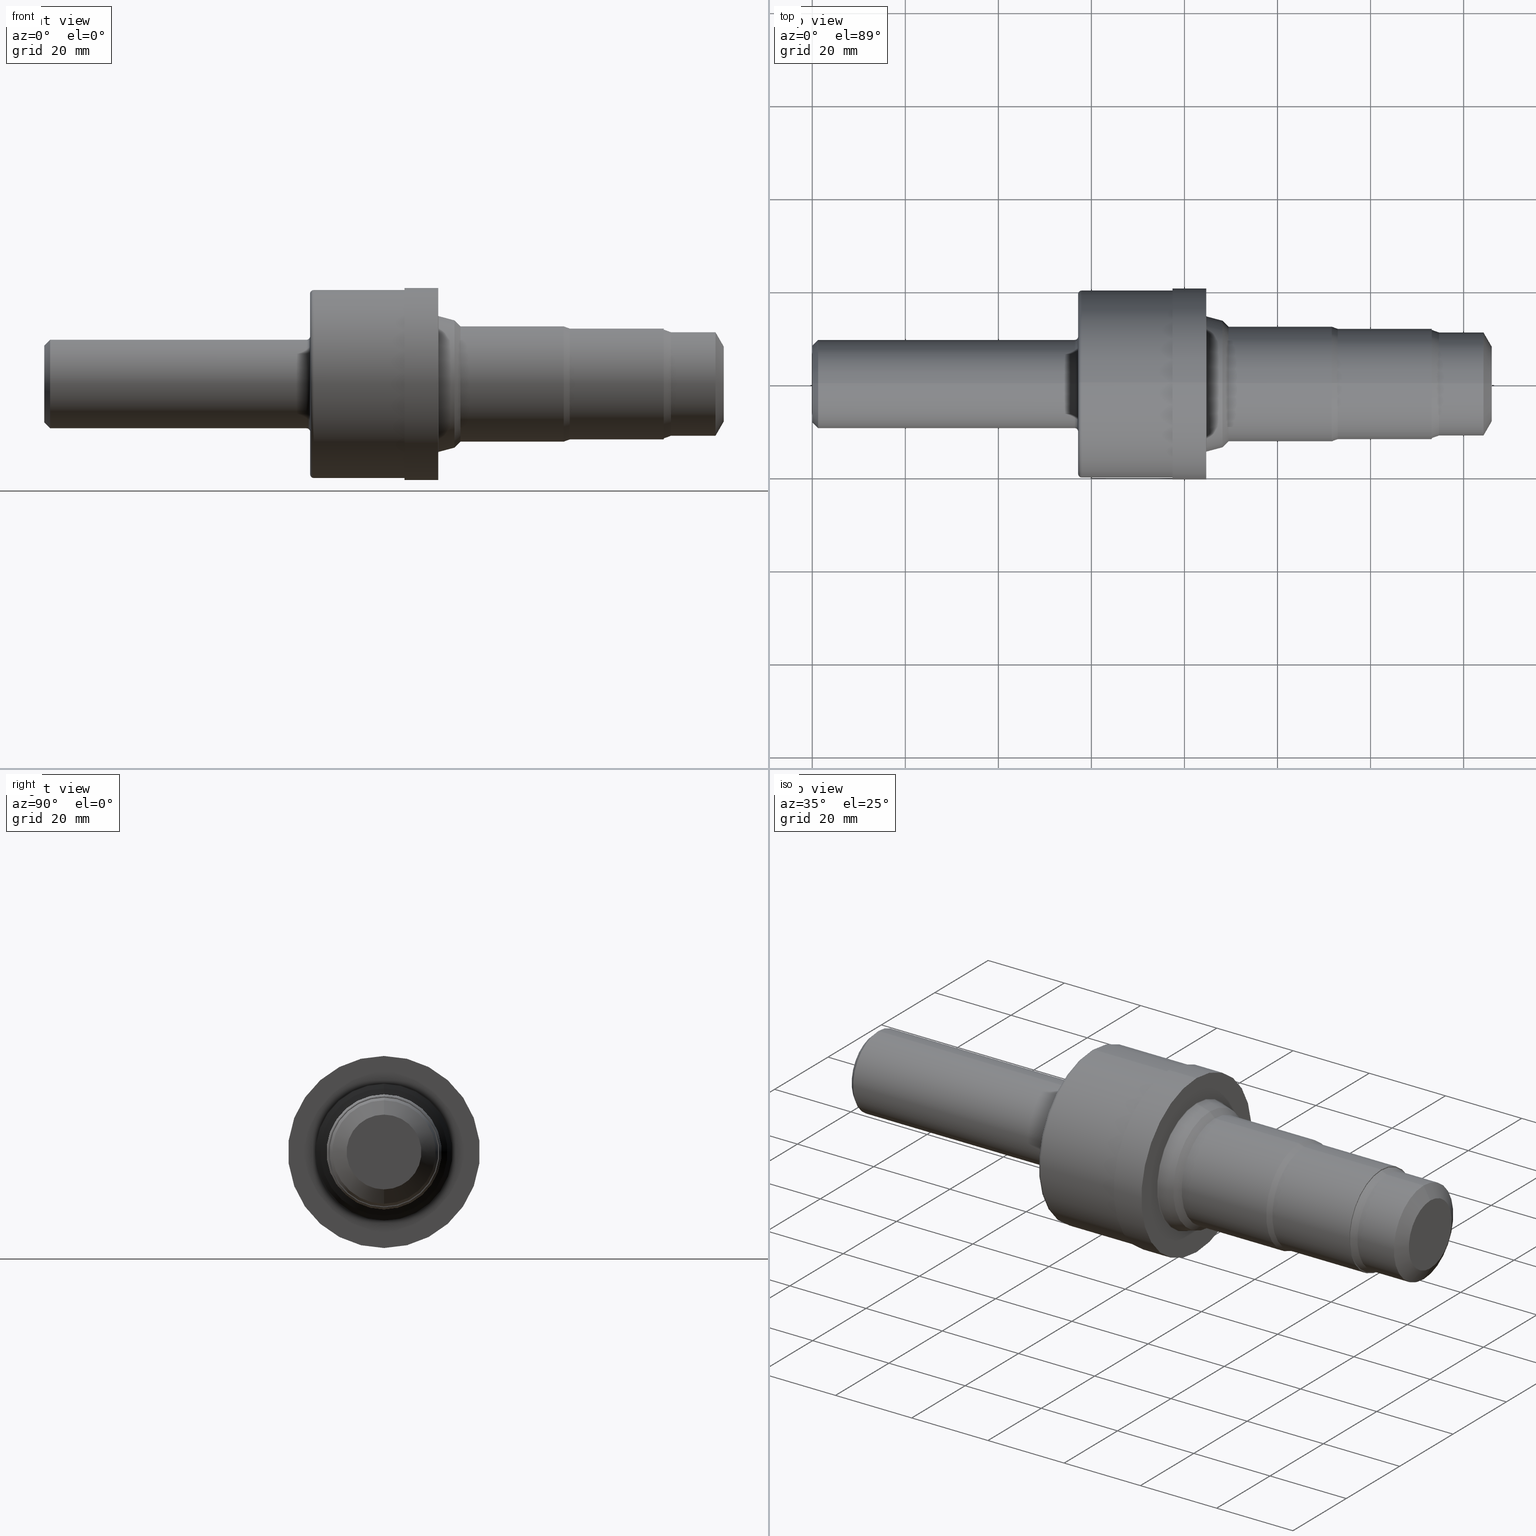
[diagram: canonical four-view strip — front | top / right | iso, engineering-drawing reading convention]
A machine part, canonical four-view strip (front | top / right | iso — engineering-drawing reading convention). The complete STEP part file that produces these views, byte-faithful:
ISO-10303-21;
HEADER;
FILE_DESCRIPTION (( 'STEP AP214' ),
    '1' );
FILE_NAME ('C12-3-FINISH-X8.STEP',
    '2019-02-18T22:00:12',
    ( '' ),
    ( '' ),
    'SwSTEP 2.0',
    'SolidWorks 2018',
    '' );
FILE_SCHEMA (( 'AUTOMOTIVE_DESIGN' ));
ENDSEC;

DATA;
#1 = ORIENTED_EDGE ( 'NONE', *, *, #110, .F. ) ;
#2 = COLOUR_RGB ( '',0.7529411764705882248, 0.7529411764705882248, 0.7529411764705882248 ) ;
#3 = ORIENTED_EDGE ( 'NONE', *, *, #651, .F. ) ;
#4 = AXIS2_PLACEMENT_3D ( 'NONE', #964, #134, #416 ) ;
#5 = AXIS2_PLACEMENT_3D ( 'NONE', #534, #454, #101 ) ;
#6 = VECTOR ( 'NONE', #911, 39.37007874015748854 ) ;
#7 = LINE ( 'NONE', #754, #965 ) ;
#8 = DIRECTION ( 'NONE',  ( -1.000000000000000000, -0.0000000000000000000, -0.0000000000000000000 ) ) ;
#9 = CARTESIAN_POINT ( 'NONE',  ( 4.395999999999999908, 5.970153145843346608E-17, -0.4874999999999999889 ) ) ;
#10 = PLANE ( 'NONE',  #737 ) ;
#11 = CARTESIAN_POINT ( 'NONE',  ( 5.303999999999998494, 0.0000000000000000000, 0.4379000000000000115 ) ) ;
#12 = VERTEX_POINT ( 'NONE', #132 ) ;
#13 = CARTESIAN_POINT ( 'NONE',  ( 3.339558857161730288, 7.026539704721338572E-17, -0.5737605087126745884 ) ) ;
#14 = CIRCLE ( 'NONE', #391, 0.7650000000000000133 ) ;
#15 = ORIENTED_EDGE ( 'NONE', *, *, #719, .F. ) ;
#16 = CARTESIAN_POINT ( 'NONE',  ( 5.241999999999999105, 5.639084022541243012E-17, -0.4604661545245039567 ) ) ;
#17 = EDGE_CURVE ( 'NONE', #283, #824, #340, .T. ) ;
#18 = CARTESIAN_POINT ( 'NONE',  ( 2.250000000000000000, 0.0000000000000000000, 0.0000000000000000000 ) ) ;
#19 = DIRECTION ( 'NONE',  ( 0.0000000000000000000, 0.0000000000000000000, 1.000000000000000000 ) ) ;
#20 = AXIS2_PLACEMENT_3D ( 'NONE', #406, #726, #732 ) ;
#21 = DIRECTION ( 'NONE',  ( -1.000000000000000000, -0.0000000000000000000, -0.0000000000000000000 ) ) ;
#22 = EDGE_CURVE ( 'NONE', #55, #759, #744, .T. ) ;
#23 = ORIENTED_EDGE ( 'NONE', *, *, #440, .T. ) ;
#24 = EDGE_CURVE ( 'NONE', #450, #197, #538, .T. ) ;
#25 = AXIS2_PLACEMENT_3D ( 'NONE', #695, #802, #841 ) ;
#26 = CARTESIAN_POINT ( 'NONE',  ( 3.334000000000000075, 0.0000000000000000000, 0.0000000000000000000 ) ) ;
#27 = ORIENTED_EDGE ( 'NONE', *, *, #803, .F. ) ;
#28 = ORIENTED_EDGE ( 'NONE', *, *, #183, .T. ) ;
#29 = AXIS2_PLACEMENT_3D ( 'NONE', #368, #764, #919 ) ;
#30 = TOROIDAL_SURFACE ( 'NONE', #387, 0.4048500000000005983, 0.02999999999999995379 ) ;
#31 = CLOSED_SHELL ( 'NONE', ( #295, #670, #767, #846, #675, #593, #484, #34, #178, #435, #441, #717, #975, #688, #522, #758, #541, #860, #166, #937, #613, #318, #405, #892, #514, #466, #103, #129, #791, #249, #217, #288, #973, #909, #812, #519 ) ) ;
#32 = DIRECTION ( 'NONE',  ( 0.0000000000000000000, 0.0000000000000000000, 1.000000000000000000 ) ) ;
#33 = CARTESIAN_POINT ( 'NONE',  ( 3.048999999999999488, 9.950255243072245579E-17, -0.8125000000000000000 ) ) ;
#34 = ADVANCED_FACE ( 'NONE', ( #319 ), #290, .T. ) ;
#35 = DIRECTION ( 'NONE',  ( 0.0000000000000000000, 0.0000000000000000000, 1.000000000000000000 ) ) ;
#36 = FACE_OUTER_BOUND ( 'NONE', #862, .T. ) ;
#37 = CARTESIAN_POINT ( 'NONE',  ( 2.250000000000000000, 0.0000000000000000000, 0.4048500000000005983 ) ) ;
#38 = FACE_OUTER_BOUND ( 'NONE', #385, .T. ) ;
#39 = AXIS2_PLACEMENT_3D ( 'NONE', #56, #642, #384 ) ;
#40 = DIRECTION ( 'NONE',  ( 0.0000000000000000000, 0.0000000000000000000, 1.000000000000000000 ) ) ;
#41 = EDGE_CURVE ( 'NONE', #559, #362, #491, .T. ) ;
#42 = CIRCLE ( 'NONE', #326, 0.4689000000000000390 ) ;
#43 = CARTESIAN_POINT ( 'NONE',  ( 3.471999999999999531, 0.0000000000000000000, 0.5382730114445050118 ) ) ;
#44 = AXIS2_PLACEMENT_3D ( 'NONE', #501, #68, #566 ) ;
#45 = DIRECTION ( 'NONE',  ( 0.0000000000000000000, 0.0000000000000000000, 1.000000000000000000 ) ) ;
#46 = EDGE_LOOP ( 'NONE', ( #580, #509 ) ) ;
#47 = CARTESIAN_POINT ( 'NONE',  ( 5.750000000000000000, 4.620325666358820153E-17, -0.3166564434701778508 ) ) ;
#48 = EDGE_CURVE ( 'NONE', #974, #450, #136, .T. ) ;
#49 = ORIENTED_EDGE ( 'NONE', *, *, #171, .T. ) ;
#50 = ORIENTED_EDGE ( 'NONE', *, *, #183, .F. ) ;
#51 = DIRECTION ( 'NONE',  ( -1.000000000000000000, -0.0000000000000000000, -0.0000000000000000000 ) ) ;
#52 = ORIENTED_EDGE ( 'NONE', *, *, #41, .T. ) ;
#53 = ORIENTED_EDGE ( 'NONE', *, *, #158, .F. ) ;
#54 = CIRCLE ( 'NONE', #153, 0.5810049524098421792 ) ;
#55 = VERTEX_POINT ( 'NONE', #226 ) ;
#56 = CARTESIAN_POINT ( 'NONE',  ( 2.220000000000000195, 4.957982566348066292E-17, -0.4048500000000005983 ) ) ;
#57 = VERTEX_POINT ( 'NONE', #620 ) ;
#58 = DIRECTION ( 'NONE',  ( 1.000000000000000000, 0.0000000000000000000, 0.0000000000000000000 ) ) ;
#59 = DIRECTION ( 'NONE',  ( -1.000000000000000000, -0.0000000000000000000, -0.0000000000000000000 ) ) ;
#60 = CIRCLE ( 'NONE', #459, 0.4604661545245039567 ) ;
#61 = EDGE_CURVE ( 'NONE', #474, #814, #873, .T. ) ;
#62 = CIRCLE ( 'NONE', #83, 0.5382730114445050118 ) ;
#63 =( NAMED_UNIT ( * ) PLANE_ANGLE_UNIT ( ) SI_UNIT ( $, .RADIAN. ) );
#64 = DIRECTION ( 'NONE',  ( -0.7071067811865445751, 0.0000000000000000000, 0.7071067811865503483 ) ) ;
#65 = CARTESIAN_POINT ( 'NONE',  ( 0.0000000000000000000, 0.0000000000000000000, 0.0000000000000000000 ) ) ;
#66 = CARTESIAN_POINT ( 'NONE',  ( 2.279999999999999805, 0.0000000000000000000, 0.0000000000000000000 ) ) ;
#67 = VECTOR ( 'NONE', #425, 39.37007874015748143 ) ;
#68 = DIRECTION ( 'NONE',  ( 1.000000000000000000, 0.0000000000000000000, 0.0000000000000000000 ) ) ;
#69 = EDGE_LOOP ( 'NONE', ( #796, #240, #694, #476 ) ) ;
#70 = CARTESIAN_POINT ( 'NONE',  ( 0.0000000000000000000, 4.590588526603858678E-17, -0.3748500000000003496 ) ) ;
#71 = DIRECTION ( 'NONE',  ( 0.0000000000000000000, 0.0000000000000000000, 1.000000000000000000 ) ) ;
#72 = EDGE_CURVE ( 'NONE', #12, #241, #933, .T. ) ;
#73 = DIRECTION ( 'NONE',  ( -1.000000000000000000, -0.0000000000000000000, -0.0000000000000000000 ) ) ;
#74 = LENGTH_MEASURE_WITH_UNIT ( LENGTH_MEASURE( 0.02539999999999999897 ), #172 );
#75 = VERTEX_POINT ( 'NONE', #495 ) ;
#76 = ORIENTED_EDGE ( 'NONE', *, *, #958, .T. ) ;
#77 = CARTESIAN_POINT ( 'NONE',  ( 4.447103080001856057, 0.0000000000000000000, 0.0000000000000000000 ) ) ;
#78 = CIRCLE ( 'NONE', #167, 0.5737605087126745884 ) ;
#79 = EDGE_LOOP ( 'NONE', ( #905, #292, #455, #581 ) ) ;
#80 = EDGE_CURVE ( 'NONE', #239, #602, #467, .T. ) ;
#81 = EDGE_LOOP ( 'NONE', ( #243, #738, #125, #265 ) ) ;
#82 = DIRECTION ( 'NONE',  ( 0.0000000000000000000, 0.0000000000000000000, 1.000000000000000000 ) ) ;
#83 = AXIS2_PLACEMENT_3D ( 'NONE', #762, #748, #687 ) ;
#84 = ORIENTED_EDGE ( 'NONE', *, *, #91, .T. ) ;
#85 = ORIENTED_EDGE ( 'NONE', *, *, #542, .F. ) ;
#86 = LINE ( 'NONE', #272, #462 ) ;
#87 = FACE_OUTER_BOUND ( 'NONE', #492, .T. ) ;
#88 = LINE ( 'NONE', #564, #67 ) ;
#89 = EDGE_LOOP ( 'NONE', ( #926, #665, #848, #410 ) ) ;
#90 = CARTESIAN_POINT ( 'NONE',  ( 5.750000000000000000, 0.0000000000000000000, 0.0000000000000000000 ) ) ;
#91 = EDGE_CURVE ( 'NONE', #341, #260, #518, .T. ) ;
#92 = AXIS2_PLACEMENT_3D ( 'NONE', #403, #192, #552 ) ;
#93 = CARTESIAN_POINT ( 'NONE',  ( 2.220000000000000195, 0.0000000000000000000, 0.0000000000000000000 ) ) ;
#94 = DIRECTION ( 'NONE',  ( -1.000000000000000000, -0.0000000000000000000, -0.0000000000000000000 ) ) ;
#95 = ORIENTED_EDGE ( 'NONE', *, *, #837, .T. ) ;
#96 = ORIENTED_EDGE ( 'NONE', *, *, #628, .F. ) ;
#97 = DIRECTION ( 'NONE',  ( -1.000000000000000000, -0.0000000000000000000, -0.0000000000000000000 ) ) ;
#98 = CIRCLE ( 'NONE', #561, 0.7950000000000000400 ) ;
#99 = VECTOR ( 'NONE', #346, 39.37007874015748854 ) ;
#100 = VERTEX_POINT ( 'NONE', #772 ) ;
#101 = DIRECTION ( 'NONE',  ( 0.0000000000000000000, 0.0000000000000000000, 1.000000000000000000 ) ) ;
#102 = ORIENTED_EDGE ( 'NONE', *, *, #264, .F. ) ;
#103 = ADVANCED_FACE ( 'NONE', ( #114, #269 ), #109, .F. ) ;
#104 = DIRECTION ( 'NONE',  ( 0.0000000000000000000, 0.0000000000000000000, 1.000000000000000000 ) ) ;
#105 = CARTESIAN_POINT ( 'NONE',  ( 3.333999999999999631, 0.0000000000000000000, 0.8125000000000000000 ) ) ;
#106 = ORIENTED_EDGE ( 'NONE', *, *, #48, .F. ) ;
#107 = CARTESIAN_POINT ( 'NONE',  ( 0.0000000000000000000, 0.0000000000000000000, 0.0000000000000000000 ) ) ;
#108 = VECTOR ( 'NONE', #840, 39.37007874015748143 ) ;
#109 = PLANE ( 'NONE',  #375 ) ;
#110 = EDGE_CURVE ( 'NONE', #709, #488, #652, .T. ) ;
#111 = AXIS2_PLACEMENT_3D ( 'NONE', #65, #298, #747 ) ;
#112 = CARTESIAN_POINT ( 'NONE',  ( 2.250000000000000000, 0.0000000000000000000, 0.0000000000000000000 ) ) ;
#113 = ORIENTED_EDGE ( 'NONE', *, *, #819, .T. ) ;
#114 = FACE_OUTER_BOUND ( 'NONE', #407, .T. ) ;
#115 = AXIS2_PLACEMENT_3D ( 'NONE', #706, #481, #335 ) ;
#116 = ORIENTED_EDGE ( 'NONE', *, *, #279, .F. ) ;
#117 = CARTESIAN_POINT ( 'NONE',  ( 3.522773011444503943, 0.0000000000000000000, 0.0000000000000000000 ) ) ;
#118 =( NAMED_UNIT ( * ) PLANE_ANGLE_UNIT ( ) SI_UNIT ( $, .RADIAN. ) );
#119 = ADVANCED_BREP_SHAPE_REPRESENTATION ( 'C12-3-FINISH-X8', ( #834, #539 ), #830 ) ;
#120 = PLANE ( 'NONE',  #336 ) ;
#121 = DIRECTION ( 'NONE',  ( -1.000000000000000000, -0.0000000000000000000, -0.0000000000000000000 ) ) ;
#122 = ORIENTED_EDGE ( 'NONE', *, *, #651, .T. ) ;
#123 = EDGE_CURVE ( 'NONE', #408, #759, #847, .T. ) ;
#124 = FACE_OUTER_BOUND ( 'NONE', #679, .T. ) ;
#125 = ORIENTED_EDGE ( 'NONE', *, *, #359, .T. ) ;
#126 = DIRECTION ( 'NONE',  ( -1.000000000000000000, -0.0000000000000000000, -0.0000000000000000000 ) ) ;
#127 = LINE ( 'NONE', #930, #480 ) ;
#128 = VERTEX_POINT ( 'NONE', #555 ) ;
#129 = ADVANCED_FACE ( 'NONE', ( #252 ), #621, .T. ) ;
#130 = EDGE_CURVE ( 'NONE', #865, #55, #88, .T. ) ;
#131 = ORIENTED_EDGE ( 'NONE', *, *, #447, .F. ) ;
#132 = CARTESIAN_POINT ( 'NONE',  ( 5.679999999999999716, 0.0000000000000000000, 0.4379000000000000115 ) ) ;
#133 = CONICAL_SURFACE ( 'NONE', #185, 0.3166564434701778508, 1.047197551196600074 ) ;
#134 = DIRECTION ( 'NONE',  ( -1.000000000000000000, -0.0000000000000000000, -0.0000000000000000000 ) ) ;
#135 = EDGE_CURVE ( 'NONE', #408, #488, #443, .T. ) ;
#136 = LINE ( 'NONE', #807, #903 ) ;
#137 = ORIENTED_EDGE ( 'NONE', *, *, #227, .F. ) ;
#138 = VERTEX_POINT ( 'NONE', #483 ) ;
#139 = CARTESIAN_POINT ( 'NONE',  ( 4.447103080001856057, 0.0000000000000000000, 0.0000000000000000000 ) ) ;
#140 = LINE ( 'NONE', #70, #782 ) ;
#141 = EDGE_CURVE ( 'NONE', #709, #605, #805, .T. ) ;
#142 = PRODUCT_DEFINITION_FORMATION_WITH_SPECIFIED_SOURCE ( 'ANY', '', #151, .NOT_KNOWN. ) ;
#143 = AXIS2_PLACEMENT_3D ( 'NONE', #664, #164, #886 ) ;
#144 = DIRECTION ( 'NONE',  ( 0.0000000000000000000, 0.0000000000000000000, 1.000000000000000000 ) ) ;
#145 = FILL_AREA_STYLE_COLOUR ( '', #2 ) ;
#146 = CARTESIAN_POINT ( 'NONE',  ( 5.750000000000000000, 0.0000000000000000000, 0.3166564434701778508 ) ) ;
#147 = CYLINDRICAL_SURFACE ( 'NONE', #427, 0.7950000000000000400 ) ;
#148 = LINE ( 'NONE', #382, #920 ) ;
#149 = ORIENTED_EDGE ( 'NONE', *, *, #248, .T. ) ;
#150 = EDGE_LOOP ( 'NONE', ( #586, #262, #174, #400 ) ) ;
#151 = PRODUCT ( 'C12-3-FINISH-X8', 'C12-3-FINISH-X8', '', ( #884 ) ) ;
#152 = DIRECTION ( 'NONE',  ( -0.9396926207859103153, 0.0000000000000000000, 0.3420201433256635504 ) ) ;
#153 = AXIS2_PLACEMENT_3D ( 'NONE', #647, #956, #570 ) ;
#154 = CARTESIAN_POINT ( 'NONE',  ( 3.341499999999999471, 0.0000000000000000000, 0.0000000000000000000 ) ) ;
#155 = VECTOR ( 'NONE', #500, 39.37007874015748854 ) ;
#156 = EDGE_LOOP ( 'NONE', ( #222, #76, #839, #373 ) ) ;
#157 = ORIENTED_EDGE ( 'NONE', *, *, #289, .F. ) ;
#158 = EDGE_CURVE ( 'NONE', #55, #244, #42, .T. ) ;
#159 = PRODUCT_RELATED_PRODUCT_CATEGORY ( 'part', '', ( #151 ) ) ;
#160 = FILL_AREA_STYLE_COLOUR ( '', #601 ) ;
#161 = AXIS2_PLACEMENT_3D ( 'NONE', #520, #524, #379 ) ;
#162 = EDGE_LOOP ( 'NONE', ( #922, #766 ) ) ;
#163 = VECTOR ( 'NONE', #663, 39.37007874015748854 ) ;
#164 = DIRECTION ( 'NONE',  ( -1.000000000000000000, -0.0000000000000000000, -0.0000000000000000000 ) ) ;
#165 = FACE_OUTER_BOUND ( 'NONE', #585, .T. ) ;
#166 = ADVANCED_FACE ( 'NONE', ( #397 ), #369, .T. ) ;
#167 = AXIS2_PLACEMENT_3D ( 'NONE', #690, #352, #619 ) ;
#168 = CIRCLE ( 'NONE', #934, 0.007499999999999646706 ) ;
#169 = ORIENTED_EDGE ( 'NONE', *, *, #958, .F. ) ;
#170 = VERTEX_POINT ( 'NONE', #636 ) ;
#171 = EDGE_CURVE ( 'NONE', #422, #75, #212, .T. ) ;
#172 =( LENGTH_UNIT ( ) NAMED_UNIT ( * ) SI_UNIT ( $, .METRE. ) );
#173 = DIRECTION ( 'NONE',  ( 0.0000000000000000000, 0.0000000000000000000, 1.000000000000000000 ) ) ;
#174 = ORIENTED_EDGE ( 'NONE', *, *, #22, .T. ) ;
#175 = EDGE_LOOP ( 'NONE', ( #638, #306, #357, #699 ) ) ;
#176 = EDGE_LOOP ( 'NONE', ( #106, #506, #789, #169 ) ) ;
#177 = DIRECTION ( 'NONE',  ( -1.000000000000000000, -0.0000000000000000000, -0.0000000000000000000 ) ) ;
#178 = ADVANCED_FACE ( 'NONE', ( #826 ), #760, .T. ) ;
#179 = PRESENTATION_LAYER_ASSIGNMENT (  '', '', ( #879 ) ) ;
#180 = CIRCLE ( 'NONE', #742, 0.3748500000000000165 ) ;
#181 = CIRCLE ( 'NONE', #788, 0.4048500000000005983 ) ;
#182 = DIRECTION ( 'NONE',  ( 1.000000000000000000, 0.0000000000000000000, 0.0000000000000000000 ) ) ;
#183 = EDGE_CURVE ( 'NONE', #283, #605, #969, .T. ) ;
#184 =( CONVERSION_BASED_UNIT ( 'INCH', #371 ) LENGTH_UNIT ( ) NAMED_UNIT ( #299 ) );
#185 = AXIS2_PLACEMENT_3D ( 'NONE', #821, #971, #82 ) ;
#186 =( NAMED_UNIT ( * ) SI_UNIT ( $, .STERADIAN. ) SOLID_ANGLE_UNIT ( ) );
#187 = DIRECTION ( 'NONE',  ( 0.0000000000000000000, 0.0000000000000000000, 1.000000000000000000 ) ) ;
#188 = LINE ( 'NONE', #310, #353 ) ;
#189 = CARTESIAN_POINT ( 'NONE',  ( 0.0000000000000000000, 0.0000000000000000000, 0.4379000000000000115 ) ) ;
#190 = VERTEX_POINT ( 'NONE', #105 ) ;
#191 = SURFACE_SIDE_STYLE ('',( #774 ) ) ;
#192 = DIRECTION ( 'NONE',  ( -1.000000000000000000, -0.0000000000000000000, -0.0000000000000000000 ) ) ;
#193 = EDGE_LOOP ( 'NONE', ( #589, #52 ) ) ;
#194 = CARTESIAN_POINT ( 'NONE',  ( 5.303999999999998494, 0.0000000000000000000, 0.0000000000000000000 ) ) ;
#195 = ORIENTED_EDGE ( 'NONE', *, *, #513, .F. ) ;
#196 = CARTESIAN_POINT ( 'NONE',  ( 4.447103080001856057, 5.742368841201939169E-17, -0.4689000000000000390 ) ) ;
#197 = VERTEX_POINT ( 'NONE', #799 ) ;
#198 = FACE_OUTER_BOUND ( 'NONE', #79, .T. ) ;
#199 = AXIS2_PLACEMENT_3D ( 'NONE', #66, #126, #104 ) ;
#200 = ORIENTED_EDGE ( 'NONE', *, *, #728, .F. ) ;
#201 = DIRECTION ( 'NONE',  ( -1.000000000000000000, -0.0000000000000000000, -0.0000000000000000000 ) ) ;
#202 = AXIS2_PLACEMENT_3D ( 'NONE', #209, #963, #429 ) ;
#203 = AXIS2_PLACEMENT_3D ( 'NONE', #90, #434, #378 ) ;
#204 = CIRCLE ( 'NONE', #250, 0.7950000000000000400 ) ;
#205 = AXIS2_PLACEMENT_3D ( 'NONE', #645, #945, #948 ) ;
#206 = CYLINDRICAL_SURFACE ( 'NONE', #704, 0.4689000000000000390 ) ;
#207 = CARTESIAN_POINT ( 'NONE',  ( 0.0000000000000000000, 0.0000000000000000000, -0.3248500000000001386 ) ) ;
#208 = DIRECTION ( 'NONE',  ( 0.0000000000000000000, 0.0000000000000000000, 1.000000000000000000 ) ) ;
#209 = CARTESIAN_POINT ( 'NONE',  ( 3.471999999999999531, 0.0000000000000000000, 0.0000000000000000000 ) ) ;
#210 = DIRECTION ( 'NONE',  ( -1.000000000000000000, 0.0000000000000000000, -0.0000000000000000000 ) ) ;
#211 = EDGE_CURVE ( 'NONE', #197, #445, #14, .T. ) ;
#212 = CIRCLE ( 'NONE', #685, 0.5810049524098421792 ) ;
#213 = CARTESIAN_POINT ( 'NONE',  ( 0.0000000000000000000, 0.0000000000000000000, 0.8125000000000000000 ) ) ;
#214 = PRESENTATION_STYLE_ASSIGNMENT (( #546 ) ) ;
#215 = DIRECTION ( 'NONE',  ( -1.000000000000000000, -0.0000000000000000000, -0.0000000000000000000 ) ) ;
#216 = PLANE ( 'NONE',  #790 ) ;
#217 = ADVANCED_FACE ( 'NONE', ( #784 ), #419, .T. ) ;
#218 = ORIENTED_EDGE ( 'NONE', *, *, #825, .T. ) ;
#219 = EDGE_LOOP ( 'NONE', ( #277, #28, #232, #770 ) ) ;
#220 = ORIENTED_EDGE ( 'NONE', *, *, #457, .F. ) ;
#221 = EDGE_CURVE ( 'NONE', #341, #170, #188, .T. ) ;
#222 = ORIENTED_EDGE ( 'NONE', *, *, #24, .F. ) ;
#223 = FACE_OUTER_BOUND ( 'NONE', #278, .T. ) ;
#224 = ORIENTED_EDGE ( 'NONE', *, *, #470, .T. ) ;
#225 = DIRECTION ( 'NONE',  ( 0.0000000000000000000, -1.000000000000000000, 0.0000000000000000000 ) ) ;
#226 = CARTESIAN_POINT ( 'NONE',  ( 4.447103080001856057, 0.0000000000000000000, 0.4689000000000000390 ) ) ;
#227 = EDGE_CURVE ( 'NONE', #488, #709, #550, .T. ) ;
#228 = FACE_OUTER_BOUND ( 'NONE', #659, .T. ) ;
#229 = CIRCLE ( 'NONE', #328, 0.4874999999999999889 ) ;
#230 = DIRECTION ( 'NONE',  ( -1.000000000000000000, 0.0000000000000000000, -0.0000000000000000000 ) ) ;
#231 = DIRECTION ( 'NONE',  ( 0.0000000000000000000, 0.0000000000000000000, 1.000000000000000000 ) ) ;
#232 = ORIENTED_EDGE ( 'NONE', *, *, #871, .T. ) ;
#233 = DIRECTION ( 'NONE',  ( 0.0000000000000000000, 0.0000000000000000000, 1.000000000000000000 ) ) ;
#234 = VECTOR ( 'NONE', #324, 39.37007874015748143 ) ;
#235 = ORIENTED_EDGE ( 'NONE', *, *, #227, .T. ) ;
#236 = DIRECTION ( 'NONE',  ( 0.0000000000000000000, 0.0000000000000000000, 1.000000000000000000 ) ) ;
#237 = DIMENSIONAL_EXPONENTS ( 1.000000000000000000, 0.0000000000000000000, 0.0000000000000000000, 0.0000000000000000000, 0.0000000000000000000, 0.0000000000000000000, 0.0000000000000000000 ) ;
#238 = CARTESIAN_POINT ( 'NONE',  ( 5.241999999999999105, 0.0000000000000000000, 0.4689000000000000390 ) ) ;
#239 = VERTEX_POINT ( 'NONE', #33 ) ;
#240 = ORIENTED_EDGE ( 'NONE', *, *, #628, .T. ) ;
#241 = VERTEX_POINT ( 'NONE', #327 ) ;
#242 = FACE_BOUND ( 'NONE', #529, .T. ) ;
#243 = ORIENTED_EDGE ( 'NONE', *, *, #837, .F. ) ;
#244 = VERTEX_POINT ( 'NONE', #196 ) ;
#245 = AXIS2_PLACEMENT_3D ( 'NONE', #393, #615, #536 ) ;
#246 = TOROIDAL_SURFACE ( 'NONE', #515, 0.5810049524098421792, 0.007499999999999629359 ) ;
#247 = CIRCLE ( 'NONE', #395, 0.02999999999999995379 ) ;
#248 = EDGE_CURVE ( 'NONE', #75, #824, #168, .T. ) ;
#249 = ADVANCED_FACE ( 'NONE', ( #735 ), #147, .T. ) ;
#250 = AXIS2_PLACEMENT_3D ( 'NONE', #657, #21, #236 ) ;
#251 = ORIENTED_EDGE ( 'NONE', *, *, #578, .F. ) ;
#252 = FACE_OUTER_BOUND ( 'NONE', #81, .T. ) ;
#253 = VERTEX_POINT ( 'NONE', #644 ) ;
#254 = EDGE_CURVE ( 'NONE', #170, #12, #946, .T. ) ;
#255 = CARTESIAN_POINT ( 'NONE',  ( 2.250000000000000000, 0.7650000000000000133, 0.0000000000000000000 ) ) ;
#256 = APPLICATION_CONTEXT ( 'automotive_design' ) ;
#257 = CARTESIAN_POINT ( 'NONE',  ( 0.0000000000000000000, 0.0000000000000000000, 0.0000000000000000000 ) ) ;
#258 = CARTESIAN_POINT ( 'NONE',  ( 3.048999999999999488, 0.0000000000000000000, 0.8125000000000000000 ) ) ;
#259 = ORIENTED_EDGE ( 'NONE', *, *, #617, .F. ) ;
#260 = VERTEX_POINT ( 'NONE', #551 ) ;
#261 = CIRCLE ( 'NONE', #622, 0.8125000000000000000 ) ;
#262 = ORIENTED_EDGE ( 'NONE', *, *, #596, .T. ) ;
#263 = DIRECTION ( 'NONE',  ( -1.000000000000000000, -0.0000000000000000000, -0.0000000000000000000 ) ) ;
#264 = EDGE_CURVE ( 'NONE', #362, #559, #571, .T. ) ;
#265 = ORIENTED_EDGE ( 'NONE', *, *, #80, .F. ) ;
#266 = LINE ( 'NONE', #213, #437 ) ;
#267 = CIRCLE ( 'NONE', #913, 0.4379000000000000115 ) ;
#268 = ORIENTED_EDGE ( 'NONE', *, *, #701, .F. ) ;
#269 = FACE_BOUND ( 'NONE', #432, .T. ) ;
#270 = CARTESIAN_POINT ( 'NONE',  ( 0.0000000000000000000, 5.742368841201939169E-17, -0.4689000000000000390 ) ) ;
#271 = ORIENTED_EDGE ( 'NONE', *, *, #110, .T. ) ;
#272 = CARTESIAN_POINT ( 'NONE',  ( 0.0000000000000000000, 0.0000000000000000000, 0.4874999999999999889 ) ) ;
#273 = AXIS2_PLACEMENT_3D ( 'NONE', #377, #230, #302 ) ;
#274 = DIRECTION ( 'NONE',  ( -0.0000000000000000000, 0.0000000000000000000, 1.000000000000000000 ) ) ;
#275 = DIRECTION ( 'NONE',  ( -1.000000000000000000, -0.0000000000000000000, -0.0000000000000000000 ) ) ;
#276 = ORIENTED_EDGE ( 'NONE', *, *, #211, .T. ) ;
#277 = ORIENTED_EDGE ( 'NONE', *, *, #17, .F. ) ;
#278 = EDGE_LOOP ( 'NONE', ( #968, #195, #284, #122 ) ) ;
#279 = EDGE_CURVE ( 'NONE', #170, #474, #527, .T. ) ;
#280 = FACE_OUTER_BOUND ( 'NONE', #972, .T. ) ;
#281 = FACE_OUTER_BOUND ( 'NONE', #320, .T. ) ;
#282 = ORIENTED_EDGE ( 'NONE', *, *, #334, .T. ) ;
#283 = VERTEX_POINT ( 'NONE', #864 ) ;
#284 = ORIENTED_EDGE ( 'NONE', *, *, #542, .T. ) ;
#285 = CARTESIAN_POINT ( 'NONE',  ( 0.05000000000000000278, 4.590588526603853748E-17, 0.3748500000000000165 ) ) ;
#286 = LINE ( 'NONE', #792, #108 ) ;
#287 = DIRECTION ( 'NONE',  ( -0.9396926207859097602, 0.0000000000000000000, 0.3420201433256646606 ) ) ;
#288 = ADVANCED_FACE ( 'NONE', ( #507, #918 ), #120, .F. ) ;
#289 = EDGE_CURVE ( 'NONE', #362, #57, #888, .T. ) ;
#290 = CONICAL_SURFACE ( 'NONE', #202, 0.5382730114445050118, 0.2617993877991525720 ) ;
#291 = DIRECTION ( 'NONE',  ( 0.0000000000000000000, 0.0000000000000000000, 1.000000000000000000 ) ) ;
#292 = ORIENTED_EDGE ( 'NONE', *, *, #61, .T. ) ;
#293 = DIRECTION ( 'NONE',  ( 0.0000000000000000000, 0.0000000000000000000, 1.000000000000000000 ) ) ;
#294 = AXIS2_PLACEMENT_3D ( 'NONE', #469, #843, #850 ) ;
#295 = ADVANCED_FACE ( 'NONE', ( #124 ), #667, .T. ) ;
#296 = DIRECTION ( 'NONE',  ( 0.0000000000000000000, 0.0000000000000000000, 1.000000000000000000 ) ) ;
#297 = CARTESIAN_POINT ( 'NONE',  ( 4.447103080001856057, 5.742368841201939169E-17, -0.4689000000000000390 ) ) ;
#298 = DIRECTION ( 'NONE',  ( -1.000000000000000000, -0.0000000000000000000, -0.0000000000000000000 ) ) ;
#299 = DIMENSIONAL_EXPONENTS ( 1.000000000000000000, 0.0000000000000000000, 0.0000000000000000000, 0.0000000000000000000, 0.0000000000000000000, 0.0000000000000000000, 0.0000000000000000000 ) ;
#300 =( GEOMETRIC_REPRESENTATION_CONTEXT ( 3 ) GLOBAL_UNCERTAINTY_ASSIGNED_CONTEXT ( ( #731 ) ) GLOBAL_UNIT_ASSIGNED_CONTEXT ( ( #505, #63, #186 ) ) REPRESENTATION_CONTEXT ( 'NONE', 'WORKASPACE' ) );
#301 = ORIENTED_EDGE ( 'NONE', *, *, #734, .F. ) ;
#302 = DIRECTION ( 'NONE',  ( -0.0000000000000000000, 0.0000000000000000000, 1.000000000000000000 ) ) ;
#303 = CARTESIAN_POINT ( 'NONE',  ( 0.0000000000000000000, 0.0000000000000000000, 0.0000000000000000000 ) ) ;
#304 = VECTOR ( 'NONE', #456, 39.37007874015748854 ) ;
#305 = FACE_OUTER_BOUND ( 'NONE', #360, .T. ) ;
#306 = ORIENTED_EDGE ( 'NONE', *, *, #24, .T. ) ;
#307 = DIRECTION ( 'NONE',  ( -1.000000000000000000, -0.0000000000000000000, -0.0000000000000000000 ) ) ;
#308 = DIRECTION ( 'NONE',  ( -1.000000000000000000, -0.0000000000000000000, -0.0000000000000000000 ) ) ;
#309 = AXIS2_PLACEMENT_3D ( 'NONE', #950, #780, #45 ) ;
#310 = CARTESIAN_POINT ( 'NONE',  ( 5.750000000000000000, 3.877922999251381023E-17, -0.3166564434701778508 ) ) ;
#311 = VERTEX_POINT ( 'NONE', #37 ) ;
#312 = EDGE_CURVE ( 'NONE', #451, #974, #98, .T. ) ;
#313 = DIRECTION ( 'NONE',  ( 0.0000000000000000000, -1.000000000000000000, 0.0000000000000000000 ) ) ;
#314 = AXIS2_PLACEMENT_3D ( 'NONE', #574, #351, #597 ) ;
#315 = CIRCLE ( 'NONE', #472, 0.4379000000000000115 ) ;
#316 = DIRECTION ( 'NONE',  ( -1.000000000000000000, -0.0000000000000000000, -0.0000000000000000000 ) ) ;
#317 = DIRECTION ( 'NONE',  ( 0.0000000000000000000, 0.0000000000000000000, 1.000000000000000000 ) ) ;
#318 = ADVANCED_FACE ( 'NONE', ( #681 ), #842, .T. ) ;
#319 = FACE_OUTER_BOUND ( 'NONE', #832, .T. ) ;
#320 = EDGE_LOOP ( 'NONE', ( #131, #235, #532, #50 ) ) ;
#321 = CARTESIAN_POINT ( 'NONE',  ( 0.0000000000000000000, 0.0000000000000000000, 0.0000000000000000000 ) ) ;
#322 = DIRECTION ( 'NONE',  ( -0.9659258262890675351, 0.0000000000000000000, 0.2588190451025237926 ) ) ;
#323 = FACE_OUTER_BOUND ( 'NONE', #523, .T. ) ;
#324 = DIRECTION ( 'NONE',  ( -1.000000000000000000, -0.0000000000000000000, -0.0000000000000000000 ) ) ;
#325 = SURFACE_SIDE_STYLE ('',( #809 ) ) ;
#326 = AXIS2_PLACEMENT_3D ( 'NONE', #875, #795, #936 ) ;
#327 = CARTESIAN_POINT ( 'NONE',  ( 5.303999999999998494, 0.0000000000000000000, 0.4379000000000000115 ) ) ;
#328 = AXIS2_PLACEMENT_3D ( 'NONE', #867, #787, #649 ) ;
#329 = CIRCLE ( 'NONE', #482, 0.4379000000000000115 ) ;
#330 = DIRECTION ( 'NONE',  ( -1.000000000000000000, -0.0000000000000000000, -0.0000000000000000000 ) ) ;
#331 = FACE_OUTER_BOUND ( 'NONE', #608, .T. ) ;
#332 = CARTESIAN_POINT ( 'NONE',  ( 3.522773011444503943, 0.0000000000000000000, 0.0000000000000000000 ) ) ;
#333 = ORIENTED_EDGE ( 'NONE', *, *, #248, .F. ) ;
#334 = EDGE_CURVE ( 'NONE', #12, #170, #329, .T. ) ;
#335 = DIRECTION ( 'NONE',  ( 0.0000000000000000000, 0.0000000000000000000, 1.000000000000000000 ) ) ;
#336 = AXIS2_PLACEMENT_3D ( 'NONE', #255, #182, #611 ) ;
#337 = CARTESIAN_POINT ( 'NONE',  ( 3.522773011444503943, 0.0000000000000000000, 0.4874999999999999889 ) ) ;
#338 = CARTESIAN_POINT ( 'NONE',  ( 2.250000000000000000, 0.0000000000000000000, 0.0000000000000000000 ) ) ;
#339 =( NAMED_UNIT ( * ) PLANE_ANGLE_UNIT ( ) SI_UNIT ( $, .RADIAN. ) );
#340 = LINE ( 'NONE', #588, #155 ) ;
#341 = VERTEX_POINT ( 'NONE', #47 ) ;
#342 = EDGE_CURVE ( 'NONE', #759, #709, #86, .T. ) ;
#343 = AXIS2_PLACEMENT_3D ( 'NONE', #381, #547, #345 ) ;
#344 = DIRECTION ( 'NONE',  ( 0.0000000000000000000, 0.0000000000000000000, 1.000000000000000000 ) ) ;
#345 = DIRECTION ( 'NONE',  ( 0.0000000000000000000, 0.0000000000000000000, 1.000000000000000000 ) ) ;
#346 = DIRECTION ( 'NONE',  ( 0.7071067811865483499, 8.659560562354922997E-17, 0.7071067811865465735 ) ) ;
#347 = CIRCLE ( 'NONE', #889, 0.007499999999999646706 ) ;
#348 = TOROIDAL_SURFACE ( 'NONE', #29, 0.4048500000000005983, 0.02999999999999995379 ) ;
#349 = DIRECTION ( 'NONE',  ( 0.0000000000000000000, 0.0000000000000000000, 1.000000000000000000 ) ) ;
#350 = CARTESIAN_POINT ( 'NONE',  ( 3.334000000000000075, 0.8125000000000000000, 0.0000000000000000000 ) ) ;
#351 = DIRECTION ( 'NONE',  ( -1.000000000000000000, -0.0000000000000000000, -0.0000000000000000000 ) ) ;
#352 = DIRECTION ( 'NONE',  ( -1.000000000000000000, -0.0000000000000000000, -0.0000000000000000000 ) ) ;
#353 = VECTOR ( 'NONE', #716, 39.37007874015748854 ) ;
#354 = DIRECTION ( 'NONE',  ( 0.0000000000000000000, 0.0000000000000000000, 1.000000000000000000 ) ) ;
#355 = CARTESIAN_POINT ( 'NONE',  ( 4.447103080001856057, 0.0000000000000000000, 0.4689000000000000390 ) ) ;
#356 = CARTESIAN_POINT ( 'NONE',  ( 5.241999999999999105, 0.0000000000000000000, 0.0000000000000000000 ) ) ;
#357 = ORIENTED_EDGE ( 'NONE', *, *, #966, .F. ) ;
#358 = DIRECTION ( 'NONE',  ( 0.0000000000000000000, -1.224646799147354933E-16, 1.000000000000000000 ) ) ;
#359 = EDGE_CURVE ( 'NONE', #190, #602, #266, .T. ) ;
#360 = EDGE_LOOP ( 'NONE', ( #301, #686, #793, #915 ) ) ;
#361 = AXIS2_PLACEMENT_3D ( 'NONE', #955, #215, #691 ) ;
#362 = VERTEX_POINT ( 'NONE', #207 ) ;
#363 = ORIENTED_EDGE ( 'NONE', *, *, #549, .F. ) ;
#364 = CARTESIAN_POINT ( 'NONE',  ( 5.679999999999999716, 0.0000000000000000000, 0.0000000000000000000 ) ) ;
#365 = CIRCLE ( 'NONE', #203, 0.3166564434701778508 ) ;
#366 = DIRECTION ( 'NONE',  ( -1.000000000000000000, -0.0000000000000000000, -0.0000000000000000000 ) ) ;
#367 = VECTOR ( 'NONE', #676, 39.37007874015748854 ) ;
#368 = CARTESIAN_POINT ( 'NONE',  ( 2.220000000000000195, 0.0000000000000000000, 0.0000000000000000000 ) ) ;
#369 = CONICAL_SURFACE ( 'NONE', #851, 0.4379000000000000115, 0.3490658503988604000 ) ;
#370 = AXIS2_PLACEMENT_3D ( 'NONE', #257, #928, #354 ) ;
#371 = LENGTH_MEASURE_WITH_UNIT ( LENGTH_MEASURE( 0.02539999999999999897 ), #399 );
#372 = MECHANICAL_DESIGN_GEOMETRIC_PRESENTATION_REPRESENTATION (  '', ( #655 ), #853 ) ;
#373 = ORIENTED_EDGE ( 'NONE', *, *, #211, .F. ) ;
#374 = CARTESIAN_POINT ( 'NONE',  ( 0.0000000000000000000, 0.0000000000000000000, 0.0000000000000000000 ) ) ;
#375 = AXIS2_PLACEMENT_3D ( 'NONE', #350, #210, #274 ) ;
#376 = EDGE_LOOP ( 'NONE', ( #662, #863, #268, #654 ) ) ;
#377 = CARTESIAN_POINT ( 'NONE',  ( 5.750000000000000000, 0.3166564434701778508, 0.0000000000000000000 ) ) ;
#378 = DIRECTION ( 'NONE',  ( 0.0000000000000000000, 0.0000000000000000000, 1.000000000000000000 ) ) ;
#379 = DIRECTION ( 'NONE',  ( 0.0000000000000000000, 0.0000000000000000000, -1.000000000000000000 ) ) ;
#380 = ORIENTED_EDGE ( 'NONE', *, *, #549, .T. ) ;
#381 = CARTESIAN_POINT ( 'NONE',  ( 3.522773011444503943, 0.0000000000000000000, 0.0000000000000000000 ) ) ;
#382 = CARTESIAN_POINT ( 'NONE',  ( 0.0000000000000000000, 9.950255243072245579E-17, -0.8125000000000000000 ) ) ;
#383 = ORIENTED_EDGE ( 'NONE', *, *, #130, .F. ) ;
#384 = DIRECTION ( 'NONE',  ( 0.0000000000000000000, -1.224646799147352468E-16, 1.000000000000000000 ) ) ;
#385 = EDGE_LOOP ( 'NONE', ( #786, #896, #53, #383 ) ) ;
#386 = CARTESIAN_POINT ( 'NONE',  ( 0.0000000000000000000, 0.0000000000000000000, 0.0000000000000000000 ) ) ;
#387 = AXIS2_PLACEMENT_3D ( 'NONE', #490, #461, #931 ) ;
#388 = CARTESIAN_POINT ( 'NONE',  ( 5.303999999999998494, 0.0000000000000000000, 0.0000000000000000000 ) ) ;
#389 = TOROIDAL_SURFACE ( 'NONE', #314, 0.5810049524098421792, 0.007499999999999629359 ) ;
#390 = AXIS2_PLACEMENT_3D ( 'NONE', #672, #424, #358 ) ;
#391 = AXIS2_PLACEMENT_3D ( 'NONE', #616, #177, #473 ) ;
#392 = CIRCLE ( 'NONE', #794, 0.8125000000000000000 ) ;
#393 = CARTESIAN_POINT ( 'NONE',  ( 5.241999999999999105, 0.4689000000000000390, 0.0000000000000000000 ) ) ;
#394 = CARTESIAN_POINT ( 'NONE',  ( 3.048999999999999488, 0.0000000000000000000, 0.0000000000000000000 ) ) ;
#395 = AXIS2_PLACEMENT_3D ( 'NONE', #618, #785, #421 ) ;
#396 = CARTESIAN_POINT ( 'NONE',  ( 0.0000000000000000000, 5.970153145843346608E-17, -0.4874999999999999889 ) ) ;
#397 = FACE_OUTER_BOUND ( 'NONE', #69, .T. ) ;
#398 = CONICAL_SURFACE ( 'NONE', #161, 0.3748500000000000165, 0.7853981633974470578 ) ;
#399 =( LENGTH_UNIT ( ) NAMED_UNIT ( * ) SI_UNIT ( $, .METRE. ) );
#400 = ORIENTED_EDGE ( 'NONE', *, *, #123, .F. ) ;
#401 = DIRECTION ( 'NONE',  ( -1.000000000000000000, -0.0000000000000000000, -0.0000000000000000000 ) ) ;
#402 = DIRECTION ( 'NONE',  ( 0.0000000000000000000, 0.0000000000000000000, 1.000000000000000000 ) ) ;
#403 = CARTESIAN_POINT ( 'NONE',  ( 0.0000000000000000000, 0.0000000000000000000, 0.0000000000000000000 ) ) ;
#404 = MECHANICAL_DESIGN_GEOMETRIC_PRESENTATION_REPRESENTATION (  '', ( #879 ), #300 ) ;
#405 = ADVANCED_FACE ( 'NONE', ( #280 ), #820, .T. ) ;
#406 = CARTESIAN_POINT ( 'NONE',  ( 3.339558857161730288, 0.0000000000000000000, 0.0000000000000000000 ) ) ;
#407 = EDGE_LOOP ( 'NONE', ( #808, #468 ) ) ;
#408 = VERTEX_POINT ( 'NONE', #9 ) ;
#409 = CIRCLE ( 'NONE', #696, 0.7650000000000000133 ) ;
#410 = ORIENTED_EDGE ( 'NONE', *, *, #751, .F. ) ;
#411 = EDGE_CURVE ( 'NONE', #241, #874, #646, .T. ) ;
#412 = AXIS2_PLACEMENT_3D ( 'NONE', #356, #876, #531 ) ;
#413 = DIRECTION ( 'NONE',  ( -1.000000000000000000, -0.0000000000000000000, -0.0000000000000000000 ) ) ;
#414 = AXIS2_PLACEMENT_3D ( 'NONE', #921, #927, #604 ) ;
#415 = FACE_OUTER_BOUND ( 'NONE', #376, .T. ) ;
#416 = DIRECTION ( 'NONE',  ( 0.0000000000000000000, 0.0000000000000000000, 1.000000000000000000 ) ) ;
#417 = CYLINDRICAL_SURFACE ( 'NONE', #836, 0.7950000000000000400 ) ;
#418 = CARTESIAN_POINT ( 'NONE',  ( 0.0000000000000000000, 4.284426826817016124E-17, 0.3248500000000001386 ) ) ;
#419 = TOROIDAL_SURFACE ( 'NONE', #702, 0.7650000000000000133, 0.02999999999999995379 ) ;
#420 = CARTESIAN_POINT ( 'NONE',  ( 2.279999999999999805, 9.735942053221458626E-17, -0.7950000000000000400 ) ) ;
#421 = DIRECTION ( 'NONE',  ( 0.0000000000000000000, 0.0000000000000000000, -1.000000000000000000 ) ) ;
#422 = VERTEX_POINT ( 'NONE', #897 ) ;
#423 = CIRCLE ( 'NONE', #115, 0.8125000000000000000 ) ;
#424 = DIRECTION ( 'NONE',  ( -0.0000000000000000000, 1.000000000000000000, 1.224646799147353207E-16 ) ) ;
#425 = DIRECTION ( 'NONE',  ( -1.000000000000000000, -0.0000000000000000000, -0.0000000000000000000 ) ) ;
#426 = EDGE_CURVE ( 'NONE', #874, #814, #60, .T. ) ;
#427 = AXIS2_PLACEMENT_3D ( 'NONE', #386, #263, #465 ) ;
#428 = CARTESIAN_POINT ( 'NONE',  ( 4.447103080001856057, 0.0000000000000000000, 0.0000000000000000000 ) ) ;
#429 = DIRECTION ( 'NONE',  ( 0.0000000000000000000, 0.0000000000000000000, 1.000000000000000000 ) ) ;
#430 = CARTESIAN_POINT ( 'NONE',  ( 2.250000000000000000, 0.0000000000000000000, 0.7650000000000000133 ) ) ;
#431 = ORIENTED_EDGE ( 'NONE', *, *, #917, .T. ) ;
#432 = EDGE_LOOP ( 'NONE', ( #49, #894 ) ) ;
#433 = ORIENTED_EDGE ( 'NONE', *, *, #719, .T. ) ;
#434 = DIRECTION ( 'NONE',  ( -1.000000000000000000, -0.0000000000000000000, -0.0000000000000000000 ) ) ;
#435 = ADVANCED_FACE ( 'NONE', ( #228 ), #594, .T. ) ;
#436 = DIRECTION ( 'NONE',  ( -0.9396926207859103153, 4.188538737676928286E-17, -0.3420201433256635504 ) ) ;
#437 = VECTOR ( 'NONE', #366, 39.37007874015748143 ) ;
#438 = FACE_OUTER_BOUND ( 'NONE', #89, .T. ) ;
#439 = DIRECTION ( 'NONE',  ( 0.0000000000000000000, 0.0000000000000000000, -1.000000000000000000 ) ) ;
#440 = EDGE_CURVE ( 'NONE', #814, #874, #800, .T. ) ;
#441 = ADVANCED_FACE ( 'NONE', ( #415 ), #567, .T. ) ;
#442 = AXIS2_PLACEMENT_3D ( 'NONE', #332, #121, #187 ) ;
#443 = LINE ( 'NONE', #396, #234 ) ;
#444 = AXIS2_PLACEMENT_3D ( 'NONE', #729, #225, #698 ) ;
#445 = VERTEX_POINT ( 'NONE', #430 ) ;
#446 = CARTESIAN_POINT ( 'NONE',  ( 2.220000000000000195, 0.0000000000000000000, 0.3748500000000006271 ) ) ;
#447 = EDGE_CURVE ( 'NONE', #488, #283, #781, .T. ) ;
#448 = DIMENSIONAL_EXPONENTS ( 1.000000000000000000, 0.0000000000000000000, 0.0000000000000000000, 0.0000000000000000000, 0.0000000000000000000, 0.0000000000000000000, 0.0000000000000000000 ) ;
#449 = ORIENTED_EDGE ( 'NONE', *, *, #447, .T. ) ;
#450 = VERTEX_POINT ( 'NONE', #420 ) ;
#451 = VERTEX_POINT ( 'NONE', #653 ) ;
#452 = DIRECTION ( 'NONE',  ( -1.000000000000000000, -0.0000000000000000000, -0.0000000000000000000 ) ) ;
#453 = CONICAL_SURFACE ( 'NONE', #779, 0.4874999999999999889, 0.7853981633974523868 ) ;
#454 = DIRECTION ( 'NONE',  ( -1.000000000000000000, -0.0000000000000000000, -0.0000000000000000000 ) ) ;
#455 = ORIENTED_EDGE ( 'NONE', *, *, #426, .F. ) ;
#456 = DIRECTION ( 'NONE',  ( 0.7071067811865483499, 0.0000000000000000000, -0.7071067811865465735 ) ) ;
#457 = EDGE_CURVE ( 'NONE', #576, #450, #204, .T. ) ;
#458 = ORIENTED_EDGE ( 'NONE', *, *, #41, .F. ) ;
#459 = AXIS2_PLACEMENT_3D ( 'NONE', #924, #511, #584 ) ;
#460 = ORIENTED_EDGE ( 'NONE', *, *, #426, .T. ) ;
#461 = DIRECTION ( 'NONE',  ( -1.000000000000000000, -0.0000000000000000000, -0.0000000000000000000 ) ) ;
#462 = VECTOR ( 'NONE', #97, 39.37007874015748143 ) ;
#463 = CYLINDRICAL_SURFACE ( 'NONE', #205, 0.8125000000000000000 ) ;
#464 = ORIENTED_EDGE ( 'NONE', *, *, #907, .F. ) ;
#465 = DIRECTION ( 'NONE',  ( 0.0000000000000000000, 0.0000000000000000000, 1.000000000000000000 ) ) ;
#466 = ADVANCED_FACE ( 'NONE', ( #36 ), #246, .F. ) ;
#467 = CIRCLE ( 'NONE', #609, 0.8125000000000000000 ) ;
#468 = ORIENTED_EDGE ( 'NONE', *, *, #953, .F. ) ;
#469 = CARTESIAN_POINT ( 'NONE',  ( 3.048999999999999488, 0.0000000000000000000, 0.0000000000000000000 ) ) ;
#470 = EDGE_CURVE ( 'NONE', #260, #341, #365, .T. ) ;
#471 = DIRECTION ( 'NONE',  ( -1.000000000000000000, -0.0000000000000000000, -0.0000000000000000000 ) ) ;
#472 = AXIS2_PLACEMENT_3D ( 'NONE', #813, #308, #144 ) ;
#473 = DIRECTION ( 'NONE',  ( 0.0000000000000000000, 0.0000000000000000000, 1.000000000000000000 ) ) ;
#474 = VERTEX_POINT ( 'NONE', #496 ) ;
#475 = ORIENTED_EDGE ( 'NONE', *, *, #130, .T. ) ;
#476 = ORIENTED_EDGE ( 'NONE', *, *, #440, .F. ) ;
#477 = DIRECTION ( 'NONE',  ( -1.000000000000000000, -0.0000000000000000000, -0.0000000000000000000 ) ) ;
#478 = DIRECTION ( 'NONE',  ( -1.000000000000000000, -0.0000000000000000000, -0.0000000000000000000 ) ) ;
#479 = FACE_OUTER_BOUND ( 'NONE', #856, .T. ) ;
#480 = VECTOR ( 'NONE', #322, 39.37007874015748854 ) ;
#481 = DIRECTION ( 'NONE',  ( -1.000000000000000000, -0.0000000000000000000, -0.0000000000000000000 ) ) ;
#482 = AXIS2_PLACEMENT_3D ( 'NONE', #364, #275, #231 ) ;
#483 = CARTESIAN_POINT ( 'NONE',  ( 2.250000000000000000, 4.957982566348066292E-17, -0.4048500000000005983 ) ) ;
#484 = ADVANCED_FACE ( 'NONE', ( #961 ), #389, .F. ) ;
#485 = ORIENTED_EDGE ( 'NONE', *, *, #502, .F. ) ;
#486 = DIRECTION ( 'NONE',  ( 0.0000000000000000000, 0.0000000000000000000, -1.000000000000000000 ) ) ;
#487 = CARTESIAN_POINT ( 'NONE',  ( 0.05000000000000000278, 0.0000000000000000000, -0.3748500000000000165 ) ) ;
#488 = VERTEX_POINT ( 'NONE', #603 ) ;
#489 = CONICAL_SURFACE ( 'NONE', #143, 0.3166564434701778508, 1.047197551196600074 ) ;
#490 = CARTESIAN_POINT ( 'NONE',  ( 2.220000000000000195, 0.0000000000000000000, 0.0000000000000000000 ) ) ;
#491 = CIRCLE ( 'NONE', #849, 0.3248500000000001386 ) ;
#492 = EDGE_LOOP ( 'NONE', ( #464, #113, #475, #674 ) ) ;
#493 = EDGE_CURVE ( 'NONE', #57, #757, #180, .T. ) ;
#494 = DIRECTION ( 'NONE',  ( -1.000000000000000000, -0.0000000000000000000, -0.0000000000000000000 ) ) ;
#495 = CARTESIAN_POINT ( 'NONE',  ( 3.334000000000000075, 7.115258552574735538E-17, -0.5810049524098421792 ) ) ;
#496 = CARTESIAN_POINT ( 'NONE',  ( 5.303999999999998494, 5.362728333466259899E-17, -0.4379000000000000115 ) ) ;
#497 = CIRCLE ( 'NONE', #20, 0.5737605087126745884 ) ;
#498 = EDGE_LOOP ( 'NONE', ( #271, #449, #200, #798 ) ) ;
#499 = DIRECTION ( 'NONE',  ( 0.0000000000000000000, 0.0000000000000000000, 1.000000000000000000 ) ) ;
#500 = DIRECTION ( 'NONE',  ( -0.9659258262890675351, 3.169619151431801919E-17, -0.2588190451025237926 ) ) ;
#501 = CARTESIAN_POINT ( 'NONE',  ( 0.05000000000000000278, 0.0000000000000000000, 0.0000000000000000000 ) ) ;
#502 = EDGE_CURVE ( 'NONE', #260, #12, #544, .T. ) ;
#503 = CARTESIAN_POINT ( 'NONE',  ( 3.048999999999999488, 0.0000000000000000000, 0.0000000000000000000 ) ) ;
#504 = DIRECTION ( 'NONE',  ( -1.000000000000000000, -0.0000000000000000000, -0.0000000000000000000 ) ) ;
#505 =( CONVERSION_BASED_UNIT ( 'INCH', #74 ) LENGTH_UNIT ( ) NAMED_UNIT ( #448 ) );
#506 = ORIENTED_EDGE ( 'NONE', *, *, #617, .T. ) ;
#507 = FACE_BOUND ( 'NONE', #600, .T. ) ;
#508 = FACE_OUTER_BOUND ( 'NONE', #46, .T. ) ;
#509 = ORIENTED_EDGE ( 'NONE', *, *, #819, .F. ) ;
#510 = ORIENTED_EDGE ( 'NONE', *, *, #776, .T. ) ;
#511 = DIRECTION ( 'NONE',  ( -1.000000000000000000, -0.0000000000000000000, -0.0000000000000000000 ) ) ;
#512 = DIRECTION ( 'NONE',  ( 0.0000000000000000000, 0.0000000000000000000, 1.000000000000000000 ) ) ;
#513 = EDGE_CURVE ( 'NONE', #815, #128, #750, .T. ) ;
#514 = ADVANCED_FACE ( 'NONE', ( #942 ), #705, .T. ) ;
#515 = AXIS2_PLACEMENT_3D ( 'NONE', #154, #669, #296 ) ;
#516 = AXIS2_PLACEMENT_3D ( 'NONE', #428, #569, #40 ) ;
#517 = ORIENTED_EDGE ( 'NONE', *, *, #72, .F. ) ;
#518 = CIRCLE ( 'NONE', #885, 0.3166564434701778508 ) ;
#519 = ADVANCED_FACE ( 'NONE', ( #521 ), #216, .F. ) ;
#520 = CARTESIAN_POINT ( 'NONE',  ( 0.05000000000000000278, 0.0000000000000000000, 0.0000000000000000000 ) ) ;
#521 = FACE_OUTER_BOUND ( 'NONE', #193, .T. ) ;
#522 = ADVANCED_FACE ( 'NONE', ( #730 ), #133, .T. ) ;
#523 = EDGE_LOOP ( 'NONE', ( #763, #84, #743, #683 ) ) ;
#524 = DIRECTION ( 'NONE',  ( 1.000000000000000000, 0.0000000000000000000, 0.0000000000000000000 ) ) ;
#525 = EDGE_LOOP ( 'NONE', ( #775, #678, #220, #251 ) ) ;
#526 = EDGE_CURVE ( 'NONE', #241, #474, #315, .T. ) ;
#527 = LINE ( 'NONE', #869, #710 ) ;
#528 = FACE_OUTER_BOUND ( 'NONE', #175, .T. ) ;
#529 = EDGE_LOOP ( 'NONE', ( #460, #23 ) ) ;
#530 = DIRECTION ( 'NONE',  ( 0.0000000000000000000, 0.0000000000000000000, 1.000000000000000000 ) ) ;
#531 = DIRECTION ( 'NONE',  ( 0.0000000000000000000, 0.0000000000000000000, 1.000000000000000000 ) ) ;
#532 = ORIENTED_EDGE ( 'NONE', *, *, #141, .T. ) ;
#533 = CARTESIAN_POINT ( 'NONE',  ( 3.522773011444503943, 0.0000000000000000000, 0.0000000000000000000 ) ) ;
#534 = CARTESIAN_POINT ( 'NONE',  ( 5.241999999999999105, 0.0000000000000000000, 0.0000000000000000000 ) ) ;
#535 = CARTESIAN_POINT ( 'NONE',  ( 2.279999999999999805, 0.0000000000000000000, 0.0000000000000000000 ) ) ;
#536 = DIRECTION ( 'NONE',  ( -0.0000000000000000000, 0.0000000000000000000, 1.000000000000000000 ) ) ;
#537 = DIRECTION ( 'NONE',  ( -1.000000000000000000, -0.0000000000000000000, -0.0000000000000000000 ) ) ;
#538 = CIRCLE ( 'NONE', #390, 0.02999999999999995379 ) ;
#539 = AXIS2_PLACEMENT_3D ( 'NONE', #778, #32, #58 ) ;
#540 = ORIENTED_EDGE ( 'NONE', *, *, #254, .T. ) ;
#541 = ADVANCED_FACE ( 'NONE', ( #323 ), #489, .T. ) ;
#542 = EDGE_CURVE ( 'NONE', #815, #311, #692, .T. ) ;
#543 = CARTESIAN_POINT ( 'NONE',  ( 0.05000000000000000278, 0.0000000000000000000, 0.0000000000000000000 ) ) ;
#544 = LINE ( 'NONE', #146, #163 ) ;
#545 = FACE_OUTER_BOUND ( 'NONE', #162, .T. ) ;
#546 = SURFACE_STYLE_USAGE ( .BOTH. , #325 ) ;
#547 = DIRECTION ( 'NONE',  ( -1.000000000000000000, -0.0000000000000000000, -0.0000000000000000000 ) ) ;
#548 = UNCERTAINTY_MEASURE_WITH_UNIT (LENGTH_MEASURE( 1.000000000000000082E-05 ), #184, 'distance_accuracy_value', 'NONE');
#549 = EDGE_CURVE ( 'NONE', #422, #100, #347, .T. ) ;
#550 = CIRCLE ( 'NONE', #343, 0.4874999999999999889 ) ;
#551 = CARTESIAN_POINT ( 'NONE',  ( 5.750000000000000000, 0.0000000000000000000, 0.3166564434701778508 ) ) ;
#552 = DIRECTION ( 'NONE',  ( 0.0000000000000000000, 0.0000000000000000000, 1.000000000000000000 ) ) ;
#553 = ORIENTED_EDGE ( 'NONE', *, *, #932, .T. ) ;
#554 = SURFACE_STYLE_USAGE ( .BOTH. , #191 ) ;
#555 = CARTESIAN_POINT ( 'NONE',  ( 2.220000000000000195, 4.774285546475963718E-17, -0.3748500000000006271 ) ) ;
#556 = AXIS2_PLACEMENT_3D ( 'NONE', #543, #477, #733 ) ;
#557 = ORIENTED_EDGE ( 'NONE', *, *, #342, .F. ) ;
#558 = DIRECTION ( 'NONE',  ( -1.000000000000000000, -0.0000000000000000000, -0.0000000000000000000 ) ) ;
#559 = VERTEX_POINT ( 'NONE', #418 ) ;
#560 = CONICAL_SURFACE ( 'NONE', #309, 0.4379000000000000115, 0.3490658503988604000 ) ;
#561 = AXIS2_PLACEMENT_3D ( 'NONE', #503, #494, #512 ) ;
#562 = ORIENTED_EDGE ( 'NONE', *, *, #342, .T. ) ;
#563 = CARTESIAN_POINT ( 'NONE',  ( 3.048999999999999488, 9.735942053221458626E-17, -0.7950000000000000400 ) ) ;
#564 = CARTESIAN_POINT ( 'NONE',  ( 0.0000000000000000000, 0.0000000000000000000, 0.4689000000000000390 ) ) ;
#565 = CARTESIAN_POINT ( 'NONE',  ( 3.341499999999999471, 0.0000000000000000000, 0.5810049524098421792 ) ) ;
#566 = DIRECTION ( 'NONE',  ( 0.0000000000000000000, 0.0000000000000000000, -1.000000000000000000 ) ) ;
#567 = CONICAL_SURFACE ( 'NONE', #720, 0.4689000000000000390, 0.3490658503988616213 ) ;
#568 = FACE_OUTER_BOUND ( 'NONE', #811, .T. ) ;
#569 = DIRECTION ( 'NONE',  ( -1.000000000000000000, -0.0000000000000000000, -0.0000000000000000000 ) ) ;
#570 = DIRECTION ( 'NONE',  ( 0.0000000000000000000, 0.0000000000000000000, 1.000000000000000000 ) ) ;
#571 = CIRCLE ( 'NONE', #92, 0.3248500000000001386 ) ;
#572 = DIRECTION ( 'NONE',  ( -0.0000000000000000000, 1.000000000000000000, 1.224646799147353207E-16 ) ) ;
#573 = EDGE_CURVE ( 'NONE', #824, #100, #497, .T. ) ;
#574 = CARTESIAN_POINT ( 'NONE',  ( 3.341499999999999471, 0.0000000000000000000, 0.0000000000000000000 ) ) ;
#575 = CARTESIAN_POINT ( 'NONE',  ( 0.0000000000000000000, 0.0000000000000000000, 0.0000000000000000000 ) ) ;
#576 = VERTEX_POINT ( 'NONE', #749 ) ;
#577 = DIRECTION ( 'NONE',  ( -1.000000000000000000, -0.0000000000000000000, -0.0000000000000000000 ) ) ;
#578 = EDGE_CURVE ( 'NONE', #451, #576, #286, .T. ) ;
#579 = DIRECTION ( 'NONE',  ( 0.0000000000000000000, 0.0000000000000000000, 1.000000000000000000 ) ) ;
#580 = ORIENTED_EDGE ( 'NONE', *, *, #761, .F. ) ;
#581 = ORIENTED_EDGE ( 'NONE', *, *, #411, .F. ) ;
#582 = DIRECTION ( 'NONE',  ( -1.000000000000000000, -0.0000000000000000000, -0.0000000000000000000 ) ) ;
#583 = ORIENTED_EDGE ( 'NONE', *, *, #279, .T. ) ;
#584 = DIRECTION ( 'NONE',  ( 0.0000000000000000000, 0.0000000000000000000, 1.000000000000000000 ) ) ;
#585 = EDGE_LOOP ( 'NONE', ( #827, #102, #891, #746 ) ) ;
#586 = ORIENTED_EDGE ( 'NONE', *, *, #741, .F. ) ;
#587 = SHAPE_DEFINITION_REPRESENTATION ( #727, #119 ) ;
#588 = CARTESIAN_POINT ( 'NONE',  ( 3.471999999999999531, 6.591943205329196732E-17, -0.5382730114445050118 ) ) ;
#589 = ORIENTED_EDGE ( 'NONE', *, *, #264, .T. ) ;
#590 = CARTESIAN_POINT ( 'NONE',  ( 3.048999999999999488, 0.7950000000000000400, 0.0000000000000000000 ) ) ;
#591 = DIRECTION ( 'NONE',  ( -1.000000000000000000, -0.0000000000000000000, -0.0000000000000000000 ) ) ;
#592 = PRODUCT_DEFINITION ( 'UNKNOWN', '', #142, #883 ) ;
#593 = ADVANCED_FACE ( 'NONE', ( #870 ), #463, .T. ) ;
#594 = CYLINDRICAL_SURFACE ( 'NONE', #111, 0.4874999999999999889 ) ;
#595 = LINE ( 'NONE', #297, #367 ) ;
#596 = EDGE_CURVE ( 'NONE', #244, #55, #668, .T. ) ;
#597 = DIRECTION ( 'NONE',  ( 0.0000000000000000000, 0.0000000000000000000, 1.000000000000000000 ) ) ;
#598 = AXIS2_PLACEMENT_3D ( 'NONE', #535, #607, #777 ) ;
#599 = VECTOR ( 'NONE', #64, 39.37007874015748854 ) ;
#600 = EDGE_LOOP ( 'NONE', ( #3, #797 ) ) ;
#601 = COLOUR_RGB ( '',0.7529411764705882248, 0.7529411764705882248, 0.7529411764705882248 ) ;
#602 = VERTEX_POINT ( 'NONE', #258 ) ;
#603 = CARTESIAN_POINT ( 'NONE',  ( 3.522773011444503943, 5.970153145843346608E-17, -0.4874999999999999889 ) ) ;
#604 = DIRECTION ( 'NONE',  ( 0.0000000000000000000, 0.0000000000000000000, 1.000000000000000000 ) ) ;
#605 = VERTEX_POINT ( 'NONE', #43 ) ;
#606 = CIRCLE ( 'NONE', #199, 0.7950000000000000400 ) ;
#607 = DIRECTION ( 'NONE',  ( -1.000000000000000000, -0.0000000000000000000, -0.0000000000000000000 ) ) ;
#608 = EDGE_LOOP ( 'NONE', ( #116, #540, #680, #96 ) ) ;
#609 = AXIS2_PLACEMENT_3D ( 'NONE', #394, #708, #317 ) ;
#610 = DIRECTION ( 'NONE',  ( -1.000000000000000000, -0.0000000000000000000, -0.0000000000000000000 ) ) ;
#611 = DIRECTION ( 'NONE',  ( 0.0000000000000000000, 0.0000000000000000000, -1.000000000000000000 ) ) ;
#612 = VECTOR ( 'NONE', #152, 39.37007874015748143 ) ;
#613 = ADVANCED_FACE ( 'NONE', ( #87 ), #844, .T. ) ;
#614 = FACE_OUTER_BOUND ( 'NONE', #893, .T. ) ;
#615 = DIRECTION ( 'NONE',  ( -1.000000000000000000, 0.0000000000000000000, -0.0000000000000000000 ) ) ;
#616 = CARTESIAN_POINT ( 'NONE',  ( 2.250000000000000000, 0.0000000000000000000, 0.0000000000000000000 ) ) ;
#617 = EDGE_CURVE ( 'NONE', #974, #451, #910, .T. ) ;
#618 = CARTESIAN_POINT ( 'NONE',  ( 2.279999999999999805, 0.0000000000000000000, 0.7650000000000000133 ) ) ;
#619 = DIRECTION ( 'NONE',  ( 0.0000000000000000000, 0.0000000000000000000, 1.000000000000000000 ) ) ;
#620 = CARTESIAN_POINT ( 'NONE',  ( 0.05000000000000000278, 4.590588526603856213E-17, -0.3748500000000000165 ) ) ;
#621 = CYLINDRICAL_SURFACE ( 'NONE', #370, 0.8125000000000000000 ) ;
#622 = AXIS2_PLACEMENT_3D ( 'NONE', #715, #330, #499 ) ;
#623 = ORIENTED_EDGE ( 'NONE', *, *, #80, .T. ) ;
#624 = CIRCLE ( 'NONE', #671, 0.3748500000000006271 ) ;
#625 = DIRECTION ( 'NONE',  ( -1.000000000000000000, -0.0000000000000000000, -0.0000000000000000000 ) ) ;
#626 = CARTESIAN_POINT ( 'NONE',  ( 0.0000000000000000000, 0.0000000000000000000, 0.0000000000000000000 ) ) ;
#627 = DIRECTION ( 'NONE',  ( 0.0000000000000000000, 0.0000000000000000000, 1.000000000000000000 ) ) ;
#628 = EDGE_CURVE ( 'NONE', #474, #241, #267, .T. ) ;
#629 = DIRECTION ( 'NONE',  ( 0.0000000000000000000, 0.0000000000000000000, 1.000000000000000000 ) ) ;
#630 = DIRECTION ( 'NONE',  ( -1.000000000000000000, -0.0000000000000000000, -0.0000000000000000000 ) ) ;
#631 = AXIS2_PLACEMENT_3D ( 'NONE', #943, #949, #629 ) ;
#632 = ORIENTED_EDGE ( 'NONE', *, *, #526, .F. ) ;
#633 = AXIS2_PLACEMENT_3D ( 'NONE', #736, #591, #71 ) ;
#634 = CARTESIAN_POINT ( 'NONE',  ( 5.241999999999999105, 5.742368841201939169E-17, -0.4689000000000000390 ) ) ;
#635 = CYLINDRICAL_SURFACE ( 'NONE', #845, 0.3748500000000003496 ) ;
#636 = CARTESIAN_POINT ( 'NONE',  ( 5.679999999999999716, 5.362728333466260515E-17, -0.4379000000000000115 ) ) ;
#637 = ORIENTED_EDGE ( 'NONE', *, *, #123, .T. ) ;
#638 = ORIENTED_EDGE ( 'NONE', *, *, #457, .T. ) ;
#639 = CARTESIAN_POINT ( 'NONE',  ( 5.241999999999999105, 0.0000000000000000000, 0.4604661545245039567 ) ) ;
#640 = DIRECTION ( 'NONE',  ( 0.0000000000000000000, 0.0000000000000000000, 1.000000000000000000 ) ) ;
#641 = ORIENTED_EDGE ( 'NONE', *, *, #952, .T. ) ;
#642 = DIRECTION ( 'NONE',  ( -0.0000000000000000000, 1.000000000000000000, 1.224646799147353207E-16 ) ) ;
#643 = EDGE_LOOP ( 'NONE', ( #666, #149, #887, #363 ) ) ;
#644 = CARTESIAN_POINT ( 'NONE',  ( 3.333999999999999631, 9.950255243072245579E-17, -0.8125000000000000000 ) ) ;
#645 = CARTESIAN_POINT ( 'NONE',  ( 0.0000000000000000000, 0.0000000000000000000, 0.0000000000000000000 ) ) ;
#646 = LINE ( 'NONE', #11, #612 ) ;
#647 = CARTESIAN_POINT ( 'NONE',  ( 3.334000000000000075, 0.0000000000000000000, 0.0000000000000000000 ) ) ;
#648 = FACE_OUTER_BOUND ( 'NONE', #525, .T. ) ;
#649 = DIRECTION ( 'NONE',  ( 0.0000000000000000000, 0.0000000000000000000, 1.000000000000000000 ) ) ;
#650 = DIRECTION ( 'NONE',  ( 0.0000000000000000000, -1.224646799147345072E-16, 1.000000000000000000 ) ) ;
#651 = EDGE_CURVE ( 'NONE', #311, #138, #901, .T. ) ;
#652 = CIRCLE ( 'NONE', #677, 0.4874999999999999889 ) ;
#653 = CARTESIAN_POINT ( 'NONE',  ( 3.048999999999999488, 0.0000000000000000000, 0.7950000000000000400 ) ) ;
#654 = ORIENTED_EDGE ( 'NONE', *, *, #22, .F. ) ;
#655 = STYLED_ITEM ( 'NONE', ( #214 ), #834 ) ;
#656 = DIRECTION ( 'NONE',  ( -1.000000000000000000, -0.0000000000000000000, -0.0000000000000000000 ) ) ;
#657 = CARTESIAN_POINT ( 'NONE',  ( 2.279999999999999805, 0.0000000000000000000, 0.0000000000000000000 ) ) ;
#658 = ORIENTED_EDGE ( 'NONE', *, *, #334, .F. ) ;
#659 = EDGE_LOOP ( 'NONE', ( #817, #923, #1, #557 ) ) ;
#660 = VERTEX_POINT ( 'NONE', #634 ) ;
#661 = LINE ( 'NONE', #285, #99 ) ;
#662 = ORIENTED_EDGE ( 'NONE', *, *, #158, .T. ) ;
#663 = DIRECTION ( 'NONE',  ( -0.4999999999999979461, 0.0000000000000000000, 0.8660254037844397068 ) ) ;
#664 = CARTESIAN_POINT ( 'NONE',  ( 5.750000000000000000, 0.0000000000000000000, 0.0000000000000000000 ) ) ;
#665 = ORIENTED_EDGE ( 'NONE', *, *, #734, .T. ) ;
#666 = ORIENTED_EDGE ( 'NONE', *, *, #947, .F. ) ;
#667 = CONICAL_SURFACE ( 'NONE', #44, 0.3748500000000000165, 0.7853981633974470578 ) ;
#668 = CIRCLE ( 'NONE', #516, 0.4689000000000000390 ) ;
#669 = DIRECTION ( 'NONE',  ( -1.000000000000000000, -0.0000000000000000000, -0.0000000000000000000 ) ) ;
#670 = ADVANCED_FACE ( 'NONE', ( #438 ), #823, .T. ) ;
#671 = AXIS2_PLACEMENT_3D ( 'NONE', #93, #912, #929 ) ;
#672 = CARTESIAN_POINT ( 'NONE',  ( 2.279999999999999805, 9.368548013477252244E-17, -0.7650000000000000133 ) ) ;
#673 = VECTOR ( 'NONE', #436, 39.37007874015748143 ) ;
#674 = ORIENTED_EDGE ( 'NONE', *, *, #596, .F. ) ;
#675 = ADVANCED_FACE ( 'NONE', ( #648 ), #417, .T. ) ;
#676 = DIRECTION ( 'NONE',  ( -0.9396926207859097602, 4.188538737676941845E-17, -0.3420201433256646606 ) ) ;
#677 = AXIS2_PLACEMENT_3D ( 'NONE', #117, #630, #944 ) ;
#678 = ORIENTED_EDGE ( 'NONE', *, *, #48, .T. ) ;
#679 = EDGE_LOOP ( 'NONE', ( #458, #899, #641, #157 ) ) ;
#680 = ORIENTED_EDGE ( 'NONE', *, *, #72, .T. ) ;
#681 = FACE_OUTER_BOUND ( 'NONE', #150, .T. ) ;
#682 = CYLINDRICAL_SURFACE ( 'NONE', #414, 0.4379000000000000115 ) ;
#683 = ORIENTED_EDGE ( 'NONE', *, *, #254, .F. ) ;
#684 = EDGE_CURVE ( 'NONE', #576, #445, #247, .T. ) ;
#685 = AXIS2_PLACEMENT_3D ( 'NONE', #26, #537, #960 ) ;
#686 = ORIENTED_EDGE ( 'NONE', *, *, #803, .T. ) ;
#687 = DIRECTION ( 'NONE',  ( 0.0000000000000000000, 0.0000000000000000000, 1.000000000000000000 ) ) ;
#688 = ADVANCED_FACE ( 'NONE', ( #614 ), #801, .T. ) ;
#689 = CARTESIAN_POINT ( 'NONE',  ( 0.0000000000000000000, 0.0000000000000000000, 0.0000000000000000000 ) ) ;
#690 = CARTESIAN_POINT ( 'NONE',  ( 3.339558857161730288, 0.0000000000000000000, 0.0000000000000000000 ) ) ;
#691 = DIRECTION ( 'NONE',  ( 0.0000000000000000000, 0.0000000000000000000, 1.000000000000000000 ) ) ;
#692 = CIRCLE ( 'NONE', #444, 0.02999999999999995379 ) ;
#693 = CARTESIAN_POINT ( 'NONE',  ( 0.0000000000000000000, 0.0000000000000000000, 0.0000000000000000000 ) ) ;
#694 = ORIENTED_EDGE ( 'NONE', *, *, #411, .T. ) ;
#695 = CARTESIAN_POINT ( 'NONE',  ( 4.395999999999999908, 0.0000000000000000000, 0.0000000000000000000 ) ) ;
#696 = AXIS2_PLACEMENT_3D ( 'NONE', #112, #51, #35 ) ;
#697 = VECTOR ( 'NONE', #852, 39.37007874015748143 ) ;
#698 = DIRECTION ( 'NONE',  ( 0.0000000000000000000, 0.0000000000000000000, -1.000000000000000000 ) ) ;
#699 = ORIENTED_EDGE ( 'NONE', *, *, #684, .F. ) ;
#700 = CARTESIAN_POINT ( 'NONE',  ( 3.341499999999999471, 7.115258552574735538E-17, -0.5810049524098421792 ) ) ;
#701 = EDGE_CURVE ( 'NONE', #759, #408, #229, .T. ) ;
#702 = AXIS2_PLACEMENT_3D ( 'NONE', #878, #478, #402 ) ;
#703 = APPLICATION_PROTOCOL_DEFINITION ( 'draft international standard', 'automotive_design', 1998, #256 ) ;
#704 = AXIS2_PLACEMENT_3D ( 'NONE', #626, #471, #771 ) ;
#705 = CONICAL_SURFACE ( 'NONE', #872, 0.5382730114445050118, 0.2617993877991525720 ) ;
#706 = CARTESIAN_POINT ( 'NONE',  ( 3.333999999999999631, 0.0000000000000000000, 0.0000000000000000000 ) ) ;
#707 = CARTESIAN_POINT ( 'NONE',  ( 3.048999999999999488, 0.0000000000000000000, 0.0000000000000000000 ) ) ;
#708 = DIRECTION ( 'NONE',  ( -1.000000000000000000, -0.0000000000000000000, -0.0000000000000000000 ) ) ;
#709 = VERTEX_POINT ( 'NONE', #337 ) ;
#710 = VECTOR ( 'NONE', #316, 39.37007874015748143 ) ;
#711 = TOROIDAL_SURFACE ( 'NONE', #598, 0.7650000000000000133, 0.02999999999999995379 ) ;
#712 = FILL_AREA_STYLE ('',( #160 ) ) ;
#713 = DIRECTION ( 'NONE',  ( -1.000000000000000000, -0.0000000000000000000, -0.0000000000000000000 ) ) ;
#714 = ORIENTED_EDGE ( 'NONE', *, *, #135, .F. ) ;
#715 = CARTESIAN_POINT ( 'NONE',  ( 3.333999999999999631, 0.0000000000000000000, 0.0000000000000000000 ) ) ;
#716 = DIRECTION ( 'NONE',  ( -0.4999999999999979461, 1.060575238724908024E-16, -0.8660254037844397068 ) ) ;
#717 = ADVANCED_FACE ( 'NONE', ( #38 ), #206, .T. ) ;
#718 = APPLICATION_CONTEXT ( 'automotive_design' ) ;
#719 = EDGE_CURVE ( 'NONE', #602, #239, #392, .T. ) ;
#720 = AXIS2_PLACEMENT_3D ( 'NONE', #77, #656, #233 ) ;
#721 = APPLICATION_PROTOCOL_DEFINITION ( 'draft international standard', 'automotive_design', 1998, #718 ) ;
#722 = VECTOR ( 'NONE', #287, 39.37007874015748854 ) ;
#723 = ORIENTED_EDGE ( 'NONE', *, *, #171, .F. ) ;
#724 = AXIS2_PLACEMENT_3D ( 'NONE', #831, #307, #291 ) ;
#725 = ORIENTED_EDGE ( 'NONE', *, *, #221, .T. ) ;
#726 = DIRECTION ( 'NONE',  ( -1.000000000000000000, -0.0000000000000000000, -0.0000000000000000000 ) ) ;
#727 = PRODUCT_DEFINITION_SHAPE ( 'NONE', 'NONE',  #592 ) ;
#728 = EDGE_CURVE ( 'NONE', #605, #283, #62, .T. ) ;
#729 = CARTESIAN_POINT ( 'NONE',  ( 2.220000000000000195, 0.0000000000000000000, 0.4048500000000005983 ) ) ;
#730 = FACE_OUTER_BOUND ( 'NONE', #861, .T. ) ;
#731 = UNCERTAINTY_MEASURE_WITH_UNIT (LENGTH_MEASURE( 1.000000000000000082E-05 ), #505, 'distance_accuracy_value', 'NONE');
#732 = DIRECTION ( 'NONE',  ( 0.0000000000000000000, 0.0000000000000000000, 1.000000000000000000 ) ) ;
#733 = DIRECTION ( 'NONE',  ( 0.0000000000000000000, 0.0000000000000000000, 1.000000000000000000 ) ) ;
#734 = EDGE_CURVE ( 'NONE', #128, #57, #140, .T. ) ;
#735 = FACE_OUTER_BOUND ( 'NONE', #176, .T. ) ;
#736 = CARTESIAN_POINT ( 'NONE',  ( 2.220000000000000195, 0.0000000000000000000, 0.0000000000000000000 ) ) ;
#737 = AXIS2_PLACEMENT_3D ( 'NONE', #590, #833, #439 ) ;
#738 = ORIENTED_EDGE ( 'NONE', *, *, #953, .T. ) ;
#739 = EDGE_LOOP ( 'NONE', ( #898, #276 ) ) ;
#740 = DIRECTION ( 'NONE',  ( -1.000000000000000000, -0.0000000000000000000, -0.0000000000000000000 ) ) ;
#741 = EDGE_CURVE ( 'NONE', #244, #408, #595, .T. ) ;
#742 = AXIS2_PLACEMENT_3D ( 'NONE', #755, #740, #579 ) ;
#743 = ORIENTED_EDGE ( 'NONE', *, *, #502, .T. ) ;
#744 = LINE ( 'NONE', #355, #722 ) ;
#745 = LENGTH_MEASURE_WITH_UNIT ( LENGTH_MEASURE( 0.02539999999999999897 ), #877 );
#746 = ORIENTED_EDGE ( 'NONE', *, *, #493, .T. ) ;
#747 = DIRECTION ( 'NONE',  ( 0.0000000000000000000, 0.0000000000000000000, 1.000000000000000000 ) ) ;
#748 = DIRECTION ( 'NONE',  ( -1.000000000000000000, -0.0000000000000000000, -0.0000000000000000000 ) ) ;
#749 = CARTESIAN_POINT ( 'NONE',  ( 2.279999999999999805, 0.0000000000000000000, 0.7950000000000000400 ) ) ;
#750 = CIRCLE ( 'NONE', #633, 0.3748500000000006271 ) ;
#751 = EDGE_CURVE ( 'NONE', #815, #757, #7, .T. ) ;
#752 = AXIS2_PLACEMENT_3D ( 'NONE', #139, #452, #293 ) ;
#753 = CIRCLE ( 'NONE', #724, 0.4689000000000000390 ) ;
#754 = CARTESIAN_POINT ( 'NONE',  ( 0.0000000000000000000, 0.0000000000000000000, 0.3748500000000003496 ) ) ;
#755 = CARTESIAN_POINT ( 'NONE',  ( 0.05000000000000000278, 0.0000000000000000000, 0.0000000000000000000 ) ) ;
#756 = PRESENTATION_LAYER_ASSIGNMENT (  '', '', ( #655 ) ) ;
#757 = VERTEX_POINT ( 'NONE', #902 ) ;
#758 = ADVANCED_FACE ( 'NONE', ( #545 ), #835, .F. ) ;
#759 = VERTEX_POINT ( 'NONE', #916 ) ;
#760 = CONICAL_SURFACE ( 'NONE', #442, 0.4874999999999999889, 0.7853981633974523868 ) ;
#761 = EDGE_CURVE ( 'NONE', #865, #660, #753, .T. ) ;
#762 = CARTESIAN_POINT ( 'NONE',  ( 3.471999999999999531, 0.0000000000000000000, 0.0000000000000000000 ) ) ;
#763 = ORIENTED_EDGE ( 'NONE', *, *, #221, .F. ) ;
#764 = DIRECTION ( 'NONE',  ( -1.000000000000000000, -0.0000000000000000000, -0.0000000000000000000 ) ) ;
#765 = DIRECTION ( 'NONE',  ( 0.0000000000000000000, 0.0000000000000000000, -1.000000000000000000 ) ) ;
#766 = ORIENTED_EDGE ( 'NONE', *, *, #91, .F. ) ;
#767 = ADVANCED_FACE ( 'NONE', ( #568 ), #348, .F. ) ;
#768 = DIRECTION ( 'NONE',  ( 0.0000000000000000000, 0.0000000000000000000, 1.000000000000000000 ) ) ;
#769 = ORIENTED_EDGE ( 'NONE', *, *, #359, .F. ) ;
#770 = ORIENTED_EDGE ( 'NONE', *, *, #573, .F. ) ;
#771 = DIRECTION ( 'NONE',  ( 0.0000000000000000000, 0.0000000000000000000, 1.000000000000000000 ) ) ;
#772 = CARTESIAN_POINT ( 'NONE',  ( 3.339558857161730288, 0.0000000000000000000, 0.5737605087126745884 ) ) ;
#773 = ORIENTED_EDGE ( 'NONE', *, *, #17, .T. ) ;
#774 = SURFACE_STYLE_FILL_AREA ( #962 ) ;
#775 = ORIENTED_EDGE ( 'NONE', *, *, #312, .T. ) ;
#776 = EDGE_CURVE ( 'NONE', #138, #311, #181, .T. ) ;
#777 = DIRECTION ( 'NONE',  ( 0.0000000000000000000, 0.0000000000000000000, 1.000000000000000000 ) ) ;
#778 = CARTESIAN_POINT ( 'NONE',  ( 0.0000000000000000000, 0.0000000000000000000, 0.0000000000000000000 ) ) ;
#779 = AXIS2_PLACEMENT_3D ( 'NONE', #533, #582, #900 ) ;
#780 = DIRECTION ( 'NONE',  ( -1.000000000000000000, -0.0000000000000000000, -0.0000000000000000000 ) ) ;
#781 = LINE ( 'NONE', #828, #6 ) ;
#782 = VECTOR ( 'NONE', #783, 39.37007874015748143 ) ;
#783 = DIRECTION ( 'NONE',  ( -1.000000000000000000, -0.0000000000000000000, -0.0000000000000000000 ) ) ;
#784 = FACE_OUTER_BOUND ( 'NONE', #156, .T. ) ;
#785 = DIRECTION ( 'NONE',  ( 0.0000000000000000000, -1.000000000000000000, 0.0000000000000000000 ) ) ;
#786 = ORIENTED_EDGE ( 'NONE', *, *, #761, .T. ) ;
#787 = DIRECTION ( 'NONE',  ( -1.000000000000000000, -0.0000000000000000000, -0.0000000000000000000 ) ) ;
#788 = AXIS2_PLACEMENT_3D ( 'NONE', #18, #94, #530 ) ;
#789 = ORIENTED_EDGE ( 'NONE', *, *, #578, .T. ) ;
#790 = AXIS2_PLACEMENT_3D ( 'NONE', #303, #810, #765 ) ;
#791 = ADVANCED_FACE ( 'NONE', ( #959, #479 ), #10, .F. ) ;
#792 = CARTESIAN_POINT ( 'NONE',  ( 0.0000000000000000000, 0.0000000000000000000, 0.7950000000000000400 ) ) ;
#793 = ORIENTED_EDGE ( 'NONE', *, *, #751, .T. ) ;
#794 = AXIS2_PLACEMENT_3D ( 'NONE', #707, #713, #857 ) ;
#795 = DIRECTION ( 'NONE',  ( -1.000000000000000000, -0.0000000000000000000, -0.0000000000000000000 ) ) ;
#796 = ORIENTED_EDGE ( 'NONE', *, *, #61, .F. ) ;
#797 = ORIENTED_EDGE ( 'NONE', *, *, #776, .F. ) ;
#798 = ORIENTED_EDGE ( 'NONE', *, *, #141, .F. ) ;
#799 = CARTESIAN_POINT ( 'NONE',  ( 2.250000000000000000, 9.552245033349356051E-17, -0.7650000000000000133 ) ) ;
#800 = CIRCLE ( 'NONE', #412, 0.4604661545245039567 ) ;
#801 = CYLINDRICAL_SURFACE ( 'NONE', #822, 0.4379000000000000115 ) ;
#802 = DIRECTION ( 'NONE',  ( -1.000000000000000000, -0.0000000000000000000, -0.0000000000000000000 ) ) ;
#803 = EDGE_CURVE ( 'NONE', #128, #815, #624, .T. ) ;
#804 = DIRECTION ( 'NONE',  ( -1.000000000000000000, -0.0000000000000000000, -0.0000000000000000000 ) ) ;
#805 = LINE ( 'NONE', #859, #599 ) ;
#806 = AXIS2_PLACEMENT_3D ( 'NONE', #693, #504, #208 ) ;
#807 = CARTESIAN_POINT ( 'NONE',  ( 0.0000000000000000000, 9.735942053221458626E-17, -0.7950000000000000400 ) ) ;
#808 = ORIENTED_EDGE ( 'NONE', *, *, #825, .F. ) ;
#809 = SURFACE_STYLE_FILL_AREA ( #712 ) ;
#810 = DIRECTION ( 'NONE',  ( 1.000000000000000000, 0.0000000000000000000, 0.0000000000000000000 ) ) ;
#811 = EDGE_LOOP ( 'NONE', ( #27, #431, #510, #85 ) ) ;
#812 = ADVANCED_FACE ( 'NONE', ( #165 ), #398, .T. ) ;
#813 = CARTESIAN_POINT ( 'NONE',  ( 5.303999999999998494, 0.0000000000000000000, 0.0000000000000000000 ) ) ;
#814 = VERTEX_POINT ( 'NONE', #16 ) ;
#815 = VERTEX_POINT ( 'NONE', #446 ) ;
#816 = CIRCLE ( 'NONE', #556, 0.3748500000000000165 ) ;
#817 = ORIENTED_EDGE ( 'NONE', *, *, #701, .T. ) ;
#818 = CARTESIAN_POINT ( 'NONE',  ( 5.303999999999998494, 5.362728333466259899E-17, -0.4379000000000000115 ) ) ;
#819 = EDGE_CURVE ( 'NONE', #660, #865, #829, .T. ) ;
#820 = CYLINDRICAL_SURFACE ( 'NONE', #967, 0.4874999999999999889 ) ;
#821 = CARTESIAN_POINT ( 'NONE',  ( 5.750000000000000000, 0.0000000000000000000, 0.0000000000000000000 ) ) ;
#822 = AXIS2_PLACEMENT_3D ( 'NONE', #689, #413, #349 ) ;
#823 = CYLINDRICAL_SURFACE ( 'NONE', #806, 0.3748500000000003496 ) ;
#824 = VERTEX_POINT ( 'NONE', #13 ) ;
#825 = EDGE_CURVE ( 'NONE', #190, #253, #423, .T. ) ;
#826 = FACE_OUTER_BOUND ( 'NONE', #498, .T. ) ;
#827 = ORIENTED_EDGE ( 'NONE', *, *, #895, .F. ) ;
#828 = CARTESIAN_POINT ( 'NONE',  ( 3.522773011444503943, 5.970153145843346608E-17, -0.4874999999999999889 ) ) ;
#829 = CIRCLE ( 'NONE', #5, 0.4689000000000000390 ) ;
#830 =( GEOMETRIC_REPRESENTATION_CONTEXT ( 3 ) GLOBAL_UNCERTAINTY_ASSIGNED_CONTEXT ( ( #914 ) ) GLOBAL_UNIT_ASSIGNED_CONTEXT ( ( #940, #339, #954 ) ) REPRESENTATION_CONTEXT ( 'NONE', 'WORKASPACE' ) );
#831 = CARTESIAN_POINT ( 'NONE',  ( 5.241999999999999105, 0.0000000000000000000, 0.0000000000000000000 ) ) ;
#832 = EDGE_LOOP ( 'NONE', ( #866, #773, #925, #908 ) ) ;
#833 = DIRECTION ( 'NONE',  ( 1.000000000000000000, 0.0000000000000000000, 0.0000000000000000000 ) ) ;
#834 = MANIFOLD_SOLID_BREP ( 'E37851FE-1626-4516-9EDA-4F4341341340-GAAFaceID19', #31 ) ;
#835 = PLANE ( 'NONE',  #273 ) ;
#836 = AXIS2_PLACEMENT_3D ( 'NONE', #107, #804, #939 ) ;
#837 = EDGE_CURVE ( 'NONE', #253, #239, #148, .T. ) ;
#838 = CIRCLE ( 'NONE', #39, 0.02999999999999995379 ) ;
#839 = ORIENTED_EDGE ( 'NONE', *, *, #684, .T. ) ;
#840 = DIRECTION ( 'NONE',  ( -1.000000000000000000, -0.0000000000000000000, -0.0000000000000000000 ) ) ;
#841 = DIRECTION ( 'NONE',  ( 0.0000000000000000000, 0.0000000000000000000, 1.000000000000000000 ) ) ;
#842 = CONICAL_SURFACE ( 'NONE', #752, 0.4689000000000000390, 0.3490658503988616213 ) ;
#843 = DIRECTION ( 'NONE',  ( -1.000000000000000000, -0.0000000000000000000, -0.0000000000000000000 ) ) ;
#844 = CYLINDRICAL_SURFACE ( 'NONE', #631, 0.4689000000000000390 ) ;
#845 = AXIS2_PLACEMENT_3D ( 'NONE', #575, #881, #344 ) ;
#846 = ADVANCED_FACE ( 'NONE', ( #528 ), #711, .T. ) ;
#847 = CIRCLE ( 'NONE', #25, 0.4874999999999999889 ) ;
#848 = ORIENTED_EDGE ( 'NONE', *, *, #952, .F. ) ;
#849 = AXIS2_PLACEMENT_3D ( 'NONE', #321, #401, #855 ) ;
#850 = DIRECTION ( 'NONE',  ( 0.0000000000000000000, 0.0000000000000000000, 1.000000000000000000 ) ) ;
#851 = AXIS2_PLACEMENT_3D ( 'NONE', #388, #951, #173 ) ;
#852 = DIRECTION ( 'NONE',  ( -1.000000000000000000, -0.0000000000000000000, -0.0000000000000000000 ) ) ;
#853 =( GEOMETRIC_REPRESENTATION_CONTEXT ( 3 ) GLOBAL_UNCERTAINTY_ASSIGNED_CONTEXT ( ( #548 ) ) GLOBAL_UNIT_ASSIGNED_CONTEXT ( ( #184, #118, #854 ) ) REPRESENTATION_CONTEXT ( 'NONE', 'WORKASPACE' ) );
#854 =( NAMED_UNIT ( * ) SI_UNIT ( $, .STERADIAN. ) SOLID_ANGLE_UNIT ( ) );
#855 = DIRECTION ( 'NONE',  ( 0.0000000000000000000, 0.0000000000000000000, 1.000000000000000000 ) ) ;
#856 = EDGE_LOOP ( 'NONE', ( #433, #623 ) ) ;
#857 = DIRECTION ( 'NONE',  ( 0.0000000000000000000, 0.0000000000000000000, 1.000000000000000000 ) ) ;
#858 = LINE ( 'NONE', #270, #890 ) ;
#859 = CARTESIAN_POINT ( 'NONE',  ( 3.522773011444503943, 0.0000000000000000000, 0.4874999999999999889 ) ) ;
#860 = ADVANCED_FACE ( 'NONE', ( #331 ), #682, .T. ) ;
#861 = EDGE_LOOP ( 'NONE', ( #224, #725, #658, #485 ) ) ;
#862 = EDGE_LOOP ( 'NONE', ( #333, #723, #380, #553 ) ) ;
#863 = ORIENTED_EDGE ( 'NONE', *, *, #741, .T. ) ;
#864 = CARTESIAN_POINT ( 'NONE',  ( 3.471999999999999531, 6.591943205329196732E-17, -0.5382730114445050118 ) ) ;
#865 = VERTEX_POINT ( 'NONE', #238 ) ;
#866 = ORIENTED_EDGE ( 'NONE', *, *, #728, .T. ) ;
#867 = CARTESIAN_POINT ( 'NONE',  ( 4.395999999999999908, 0.0000000000000000000, 0.0000000000000000000 ) ) ;
#868 = PLANE ( 'NONE',  #245 ) ;
#869 = CARTESIAN_POINT ( 'NONE',  ( 0.0000000000000000000, 5.362728333466259899E-17, -0.4379000000000000115 ) ) ;
#870 = FACE_OUTER_BOUND ( 'NONE', #957, .T. ) ;
#871 = EDGE_CURVE ( 'NONE', #605, #100, #127, .T. ) ;
#872 = AXIS2_PLACEMENT_3D ( 'NONE', #906, #880, #768 ) ;
#873 = LINE ( 'NONE', #818, #673 ) ;
#874 = VERTEX_POINT ( 'NONE', #639 ) ;
#875 = CARTESIAN_POINT ( 'NONE',  ( 4.447103080001856057, 0.0000000000000000000, 0.0000000000000000000 ) ) ;
#876 = DIRECTION ( 'NONE',  ( -1.000000000000000000, -0.0000000000000000000, -0.0000000000000000000 ) ) ;
#877 =( LENGTH_UNIT ( ) NAMED_UNIT ( * ) SI_UNIT ( $, .METRE. ) );
#878 = CARTESIAN_POINT ( 'NONE',  ( 2.279999999999999805, 0.0000000000000000000, 0.0000000000000000000 ) ) ;
#879 = STYLED_ITEM ( 'NONE', ( #904 ), #119 ) ;
#880 = DIRECTION ( 'NONE',  ( -1.000000000000000000, -0.0000000000000000000, -0.0000000000000000000 ) ) ;
#881 = DIRECTION ( 'NONE',  ( -1.000000000000000000, -0.0000000000000000000, -0.0000000000000000000 ) ) ;
#882 = DIRECTION ( 'NONE',  ( 0.0000000000000000000, 0.0000000000000000000, 1.000000000000000000 ) ) ;
#883 = PRODUCT_DEFINITION_CONTEXT ( 'detailed design', #256, 'design' ) ;
#884 = PRODUCT_CONTEXT ( 'NONE', #718, 'mechanical' ) ;
#885 = AXIS2_PLACEMENT_3D ( 'NONE', #941, #558, #627 ) ;
#886 = DIRECTION ( 'NONE',  ( 0.0000000000000000000, 0.0000000000000000000, 1.000000000000000000 ) ) ;
#887 = ORIENTED_EDGE ( 'NONE', *, *, #573, .T. ) ;
#888 = LINE ( 'NONE', #487, #304 ) ;
#889 = AXIS2_PLACEMENT_3D ( 'NONE', #565, #313, #486 ) ;
#890 = VECTOR ( 'NONE', #577, 39.37007874015748143 ) ;
#891 = ORIENTED_EDGE ( 'NONE', *, *, #289, .T. ) ;
#892 = ADVANCED_FACE ( 'NONE', ( #281 ), #453, .T. ) ;
#893 = EDGE_LOOP ( 'NONE', ( #282, #583, #632, #517 ) ) ;
#894 = ORIENTED_EDGE ( 'NONE', *, *, #947, .T. ) ;
#895 = EDGE_CURVE ( 'NONE', #559, #757, #661, .T. ) ;
#896 = ORIENTED_EDGE ( 'NONE', *, *, #907, .T. ) ;
#897 = CARTESIAN_POINT ( 'NONE',  ( 3.334000000000000075, 0.0000000000000000000, 0.5810049524098421792 ) ) ;
#898 = ORIENTED_EDGE ( 'NONE', *, *, #966, .T. ) ;
#899 = ORIENTED_EDGE ( 'NONE', *, *, #895, .T. ) ;
#900 = DIRECTION ( 'NONE',  ( 0.0000000000000000000, 0.0000000000000000000, 1.000000000000000000 ) ) ;
#901 = CIRCLE ( 'NONE', #938, 0.4048500000000005983 ) ;
#902 = CARTESIAN_POINT ( 'NONE',  ( 0.05000000000000000278, 0.0000000000000000000, 0.3748500000000000165 ) ) ;
#903 = VECTOR ( 'NONE', #59, 39.37007874015748143 ) ;
#904 = PRESENTATION_STYLE_ASSIGNMENT (( #554 ) ) ;
#905 = ORIENTED_EDGE ( 'NONE', *, *, #526, .T. ) ;
#906 = CARTESIAN_POINT ( 'NONE',  ( 3.471999999999999531, 0.0000000000000000000, 0.0000000000000000000 ) ) ;
#907 = EDGE_CURVE ( 'NONE', #660, #244, #858, .T. ) ;
#908 = ORIENTED_EDGE ( 'NONE', *, *, #871, .F. ) ;
#909 = ADVANCED_FACE ( 'NONE', ( #305 ), #635, .T. ) ;
#910 = CIRCLE ( 'NONE', #294, 0.7950000000000000400 ) ;
#911 = DIRECTION ( 'NONE',  ( -0.7071067811865445751, 8.659560562354967371E-17, -0.7071067811865503483 ) ) ;
#912 = DIRECTION ( 'NONE',  ( -1.000000000000000000, -0.0000000000000000000, -0.0000000000000000000 ) ) ;
#913 = AXIS2_PLACEMENT_3D ( 'NONE', #194, #201, #640 ) ;
#914 = UNCERTAINTY_MEASURE_WITH_UNIT (LENGTH_MEASURE( 1.000000000000000082E-05 ), #940, 'distance_accuracy_value', 'NONE');
#915 = ORIENTED_EDGE ( 'NONE', *, *, #493, .F. ) ;
#916 = CARTESIAN_POINT ( 'NONE',  ( 4.395999999999999908, 0.0000000000000000000, 0.4874999999999999889 ) ) ;
#917 = EDGE_CURVE ( 'NONE', #128, #138, #838, .T. ) ;
#918 = FACE_OUTER_BOUND ( 'NONE', #739, .T. ) ;
#919 = DIRECTION ( 'NONE',  ( 0.0000000000000000000, 0.0000000000000000000, 1.000000000000000000 ) ) ;
#920 = VECTOR ( 'NONE', #625, 39.37007874015748143 ) ;
#921 = CARTESIAN_POINT ( 'NONE',  ( 0.0000000000000000000, 0.0000000000000000000, 0.0000000000000000000 ) ) ;
#922 = ORIENTED_EDGE ( 'NONE', *, *, #470, .F. ) ;
#923 = ORIENTED_EDGE ( 'NONE', *, *, #135, .T. ) ;
#924 = CARTESIAN_POINT ( 'NONE',  ( 5.241999999999999105, 0.0000000000000000000, 0.0000000000000000000 ) ) ;
#925 = ORIENTED_EDGE ( 'NONE', *, *, #932, .F. ) ;
#926 = ORIENTED_EDGE ( 'NONE', *, *, #513, .T. ) ;
#927 = DIRECTION ( 'NONE',  ( -1.000000000000000000, -0.0000000000000000000, -0.0000000000000000000 ) ) ;
#928 = DIRECTION ( 'NONE',  ( -1.000000000000000000, -0.0000000000000000000, -0.0000000000000000000 ) ) ;
#929 = DIRECTION ( 'NONE',  ( 0.0000000000000000000, 0.0000000000000000000, 1.000000000000000000 ) ) ;
#930 = CARTESIAN_POINT ( 'NONE',  ( 3.471999999999999531, 0.0000000000000000000, 0.5382730114445050118 ) ) ;
#931 = DIRECTION ( 'NONE',  ( 0.0000000000000000000, 0.0000000000000000000, 1.000000000000000000 ) ) ;
#932 = EDGE_CURVE ( 'NONE', #100, #824, #78, .T. ) ;
#933 = LINE ( 'NONE', #189, #697 ) ;
#934 = AXIS2_PLACEMENT_3D ( 'NONE', #700, #572, #650 ) ;
#935 = EDGE_LOOP ( 'NONE', ( #970, #259 ) ) ;
#936 = DIRECTION ( 'NONE',  ( 0.0000000000000000000, 0.0000000000000000000, 1.000000000000000000 ) ) ;
#937 = ADVANCED_FACE ( 'NONE', ( #508, #242 ), #868, .F. ) ;
#938 = AXIS2_PLACEMENT_3D ( 'NONE', #338, #610, #882 ) ;
#939 = DIRECTION ( 'NONE',  ( 0.0000000000000000000, 0.0000000000000000000, 1.000000000000000000 ) ) ;
#940 =( CONVERSION_BASED_UNIT ( 'INCH', #745 ) LENGTH_UNIT ( ) NAMED_UNIT ( #237 ) );
#941 = CARTESIAN_POINT ( 'NONE',  ( 5.750000000000000000, 0.0000000000000000000, 0.0000000000000000000 ) ) ;
#942 = FACE_OUTER_BOUND ( 'NONE', #219, .T. ) ;
#943 = CARTESIAN_POINT ( 'NONE',  ( 0.0000000000000000000, 0.0000000000000000000, 0.0000000000000000000 ) ) ;
#944 = DIRECTION ( 'NONE',  ( 0.0000000000000000000, 0.0000000000000000000, 1.000000000000000000 ) ) ;
#945 = DIRECTION ( 'NONE',  ( -1.000000000000000000, -0.0000000000000000000, -0.0000000000000000000 ) ) ;
#946 = CIRCLE ( 'NONE', #361, 0.4379000000000000115 ) ;
#947 = EDGE_CURVE ( 'NONE', #75, #422, #54, .T. ) ;
#948 = DIRECTION ( 'NONE',  ( 0.0000000000000000000, 0.0000000000000000000, 1.000000000000000000 ) ) ;
#949 = DIRECTION ( 'NONE',  ( -1.000000000000000000, -0.0000000000000000000, -0.0000000000000000000 ) ) ;
#950 = CARTESIAN_POINT ( 'NONE',  ( 5.303999999999998494, 0.0000000000000000000, 0.0000000000000000000 ) ) ;
#951 = DIRECTION ( 'NONE',  ( -1.000000000000000000, -0.0000000000000000000, -0.0000000000000000000 ) ) ;
#952 = EDGE_CURVE ( 'NONE', #757, #57, #816, .T. ) ;
#953 = EDGE_CURVE ( 'NONE', #253, #190, #261, .T. ) ;
#954 =( NAMED_UNIT ( * ) SI_UNIT ( $, .STERADIAN. ) SOLID_ANGLE_UNIT ( ) );
#955 = CARTESIAN_POINT ( 'NONE',  ( 5.679999999999999716, 0.0000000000000000000, 0.0000000000000000000 ) ) ;
#956 = DIRECTION ( 'NONE',  ( -1.000000000000000000, -0.0000000000000000000, -0.0000000000000000000 ) ) ;
#957 = EDGE_LOOP ( 'NONE', ( #218, #95, #15, #769 ) ) ;
#958 = EDGE_CURVE ( 'NONE', #450, #576, #606, .T. ) ;
#959 = FACE_BOUND ( 'NONE', #935, .T. ) ;
#960 = DIRECTION ( 'NONE',  ( 0.0000000000000000000, 0.0000000000000000000, 1.000000000000000000 ) ) ;
#961 = FACE_OUTER_BOUND ( 'NONE', #643, .T. ) ;
#962 = FILL_AREA_STYLE ('',( #145 ) ) ;
#963 = DIRECTION ( 'NONE',  ( -1.000000000000000000, -0.0000000000000000000, -0.0000000000000000000 ) ) ;
#964 = CARTESIAN_POINT ( 'NONE',  ( 3.471999999999999531, 0.0000000000000000000, 0.0000000000000000000 ) ) ;
#965 = VECTOR ( 'NONE', #8, 39.37007874015748143 ) ;
#966 = EDGE_CURVE ( 'NONE', #445, #197, #409, .T. ) ;
#967 = AXIS2_PLACEMENT_3D ( 'NONE', #374, #73, #19 ) ;
#968 = ORIENTED_EDGE ( 'NONE', *, *, #917, .F. ) ;
#969 = CIRCLE ( 'NONE', #4, 0.5382730114445050118 ) ;
#970 = ORIENTED_EDGE ( 'NONE', *, *, #312, .F. ) ;
#971 = DIRECTION ( 'NONE',  ( -1.000000000000000000, -0.0000000000000000000, -0.0000000000000000000 ) ) ;
#972 = EDGE_LOOP ( 'NONE', ( #714, #637, #562, #137 ) ) ;
#973 = ADVANCED_FACE ( 'NONE', ( #223 ), #30, .F. ) ;
#974 = VERTEX_POINT ( 'NONE', #563 ) ;
#975 = ADVANCED_FACE ( 'NONE', ( #198 ), #560, .T. ) ;
ENDSEC;
END-ISO-10303-21;
